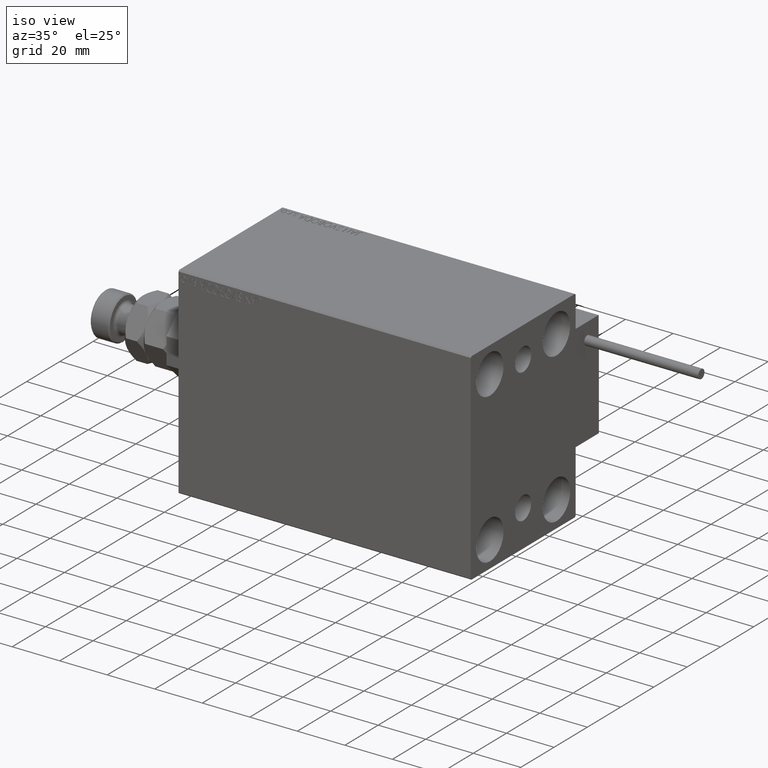
[diagram: clean part render]
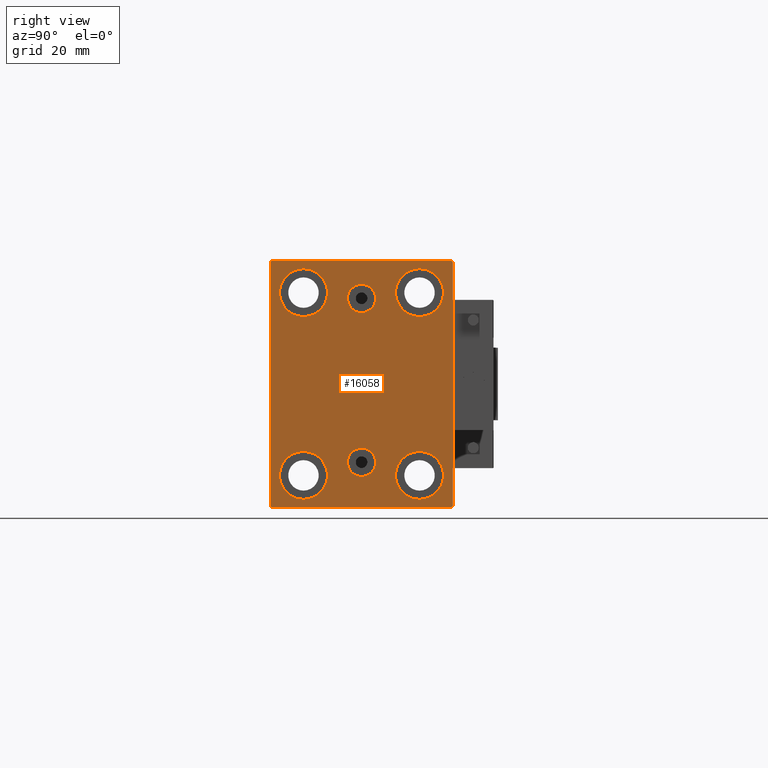
[diagram: tour spotlight — one face highlighted and labeled with its STEP entity id]
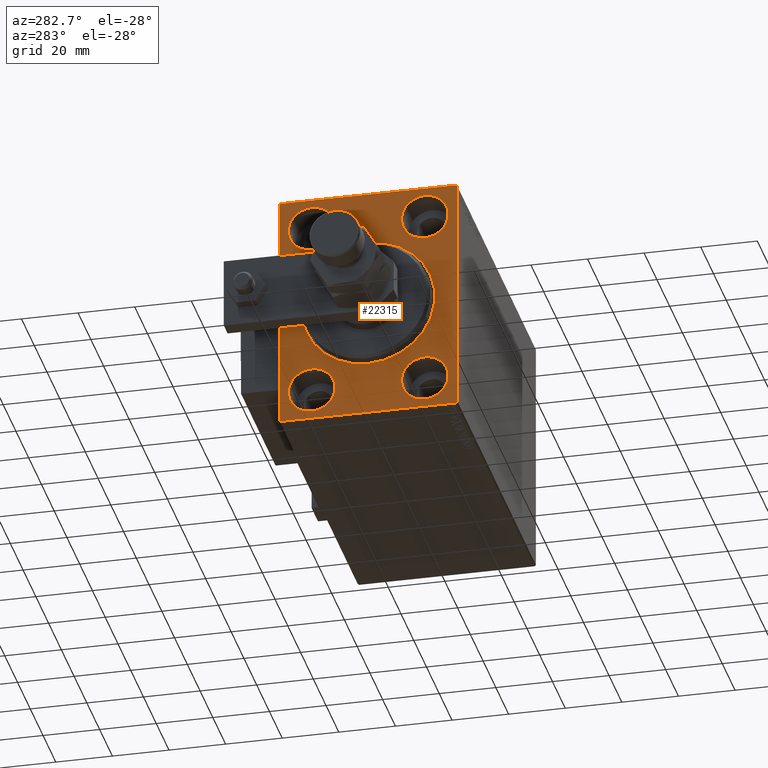
[diagram: tour spotlight — one face highlighted and labeled with its STEP entity id]
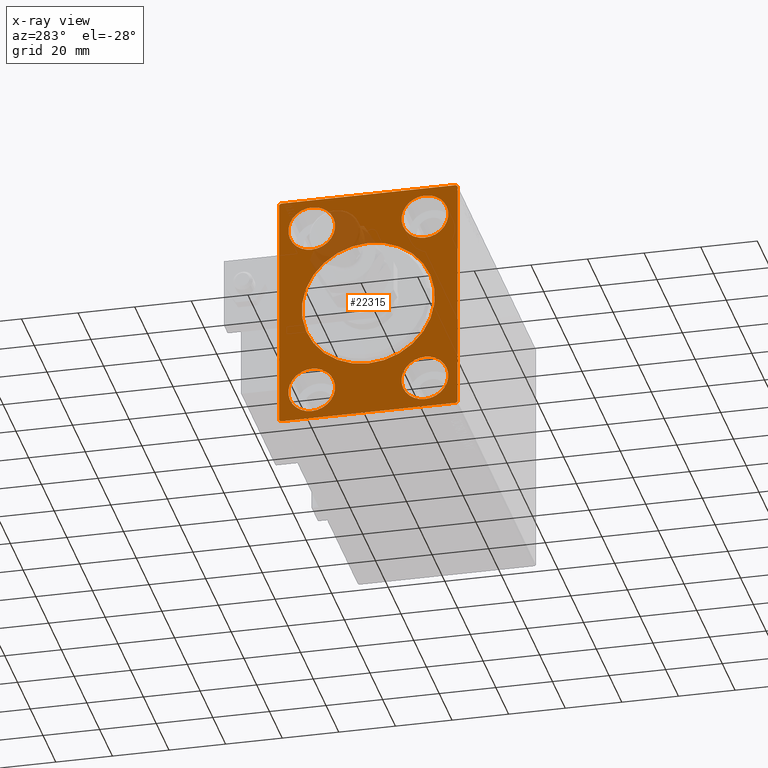
[diagram: x-ray of the same camera — body ghosted, this tour face saturated]
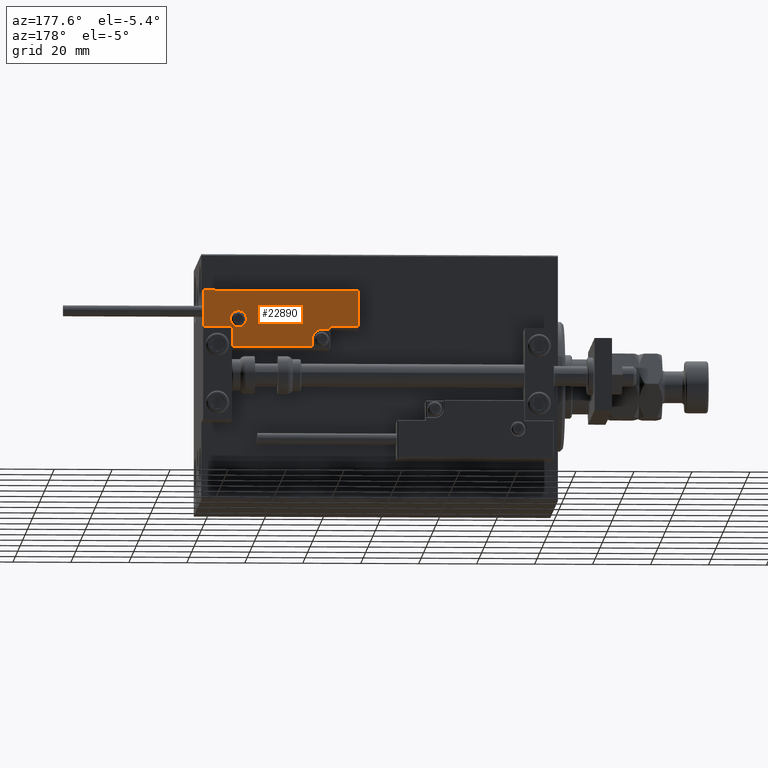
[diagram: tour spotlight — one face highlighted and labeled with its STEP entity id]
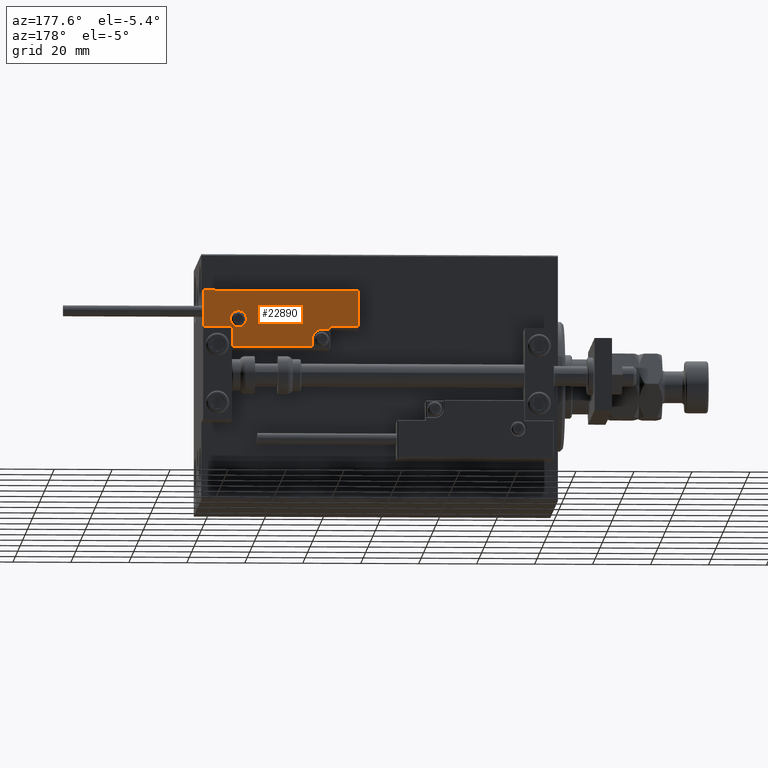
[diagram: tour spotlight — one face highlighted and labeled with its STEP entity id]
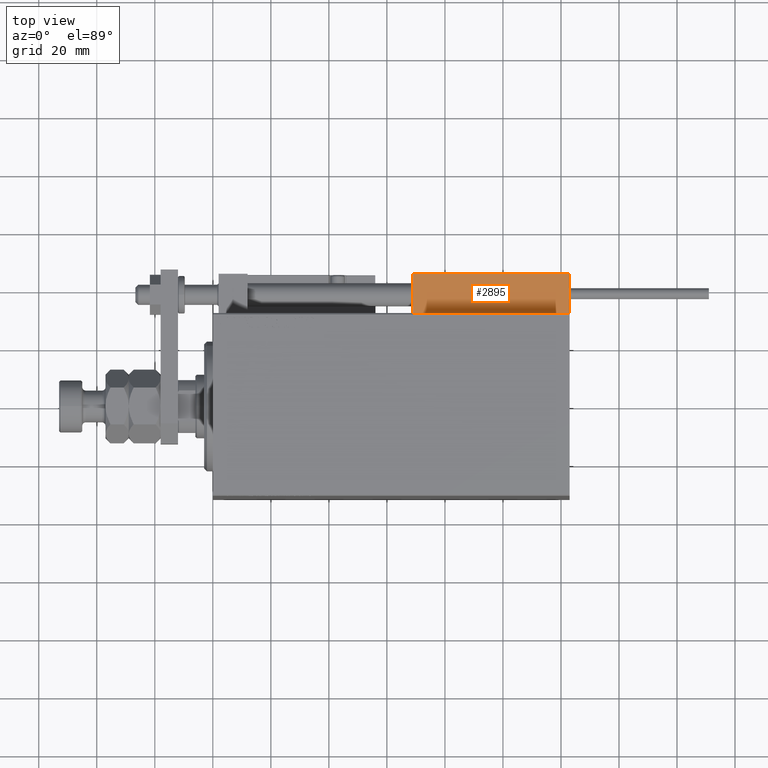
[diagram: tour spotlight — one face highlighted and labeled with its STEP entity id]
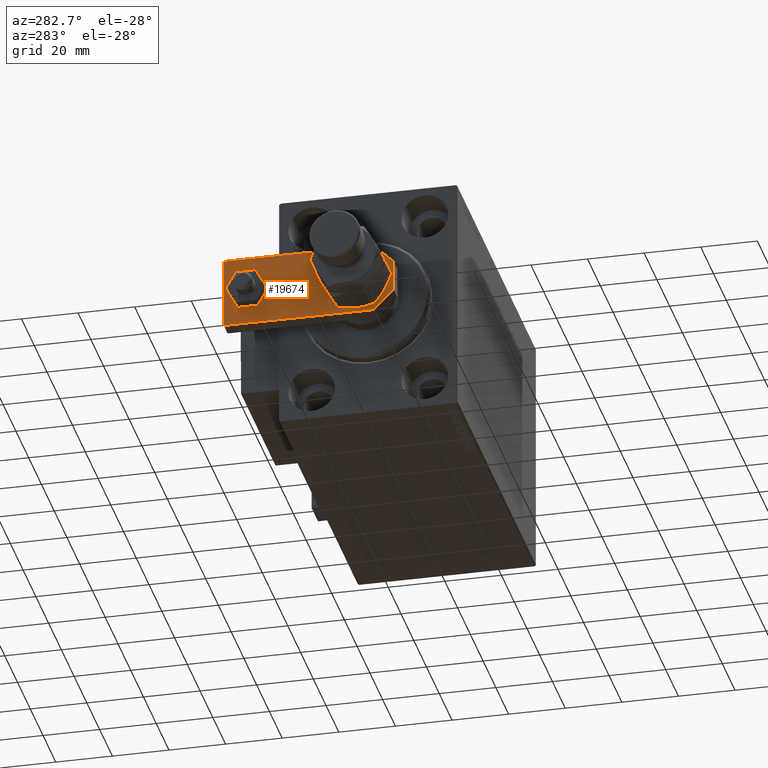
[diagram: tour spotlight — one face highlighted and labeled with its STEP entity id]
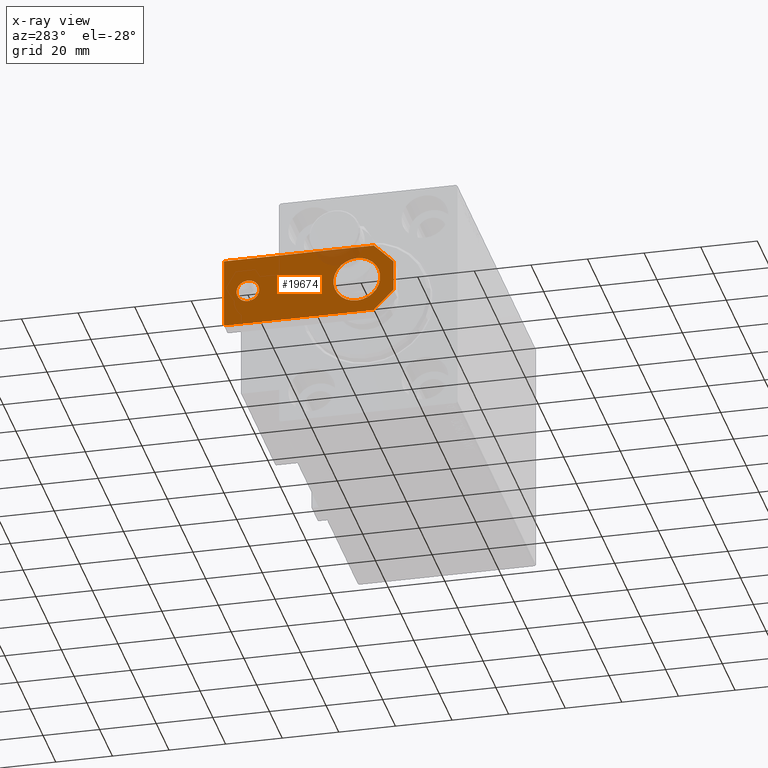
[diagram: x-ray of the same camera — body ghosted, this tour face saturated]
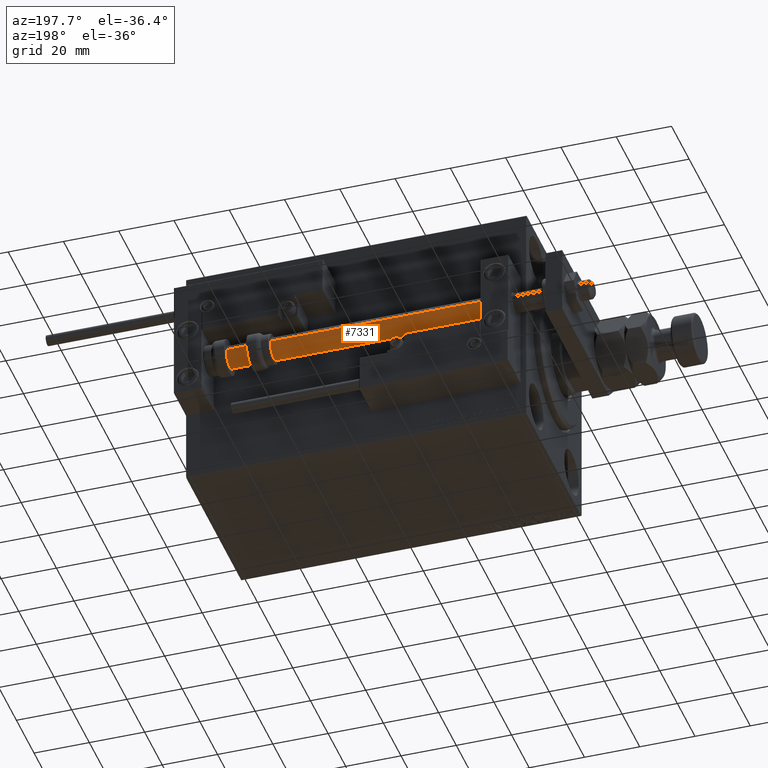
[diagram: tour spotlight — one face highlighted and labeled with its STEP entity id]
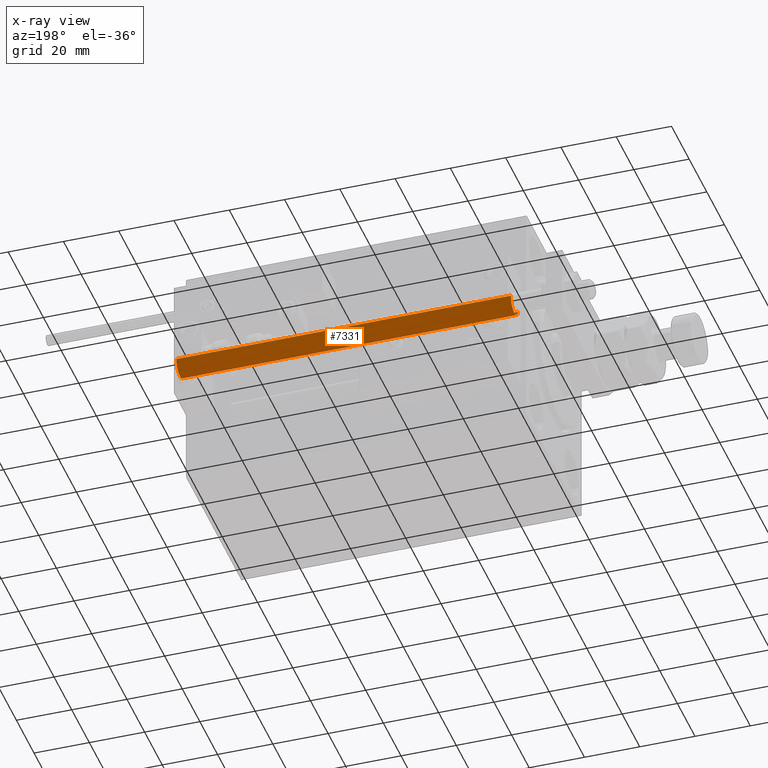
[diagram: x-ray of the same camera — body ghosted, this tour face saturated]
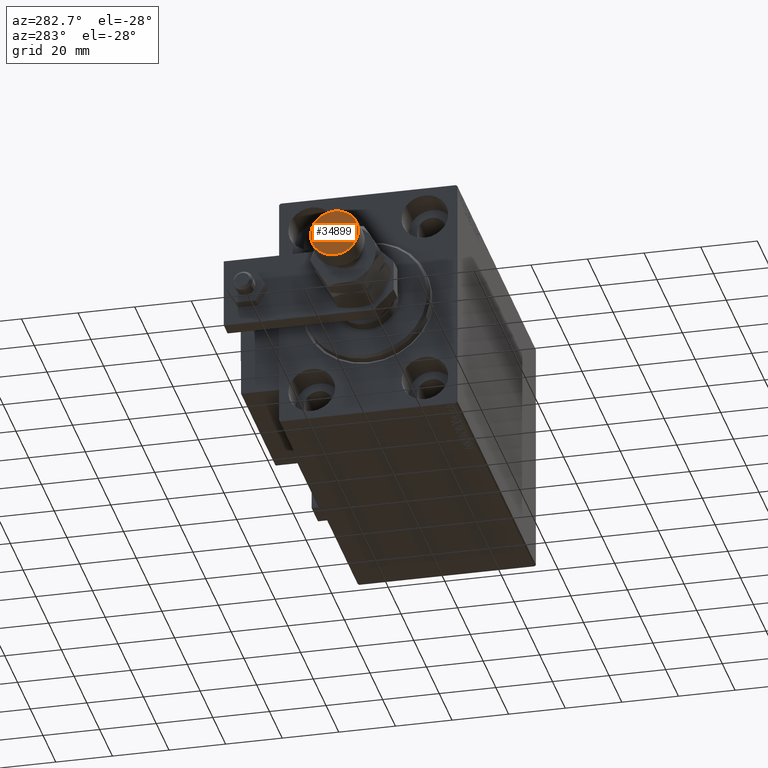
[diagram: tour spotlight — one face highlighted and labeled with its STEP entity id]
A machine part: a face-by-face anatomy tour. The part has 1330 B-rep faces; the first image is the clean iso view, then the 8 largest visible faces are spotlighted one at a time (largest first), each with its STEP entity span.

Face 1 — right view, entity #16058. In plain terms, the highlighted planar face has unit normal (1, 0, 0).
Definition (entity closure, byte-faithful):
#247 = CARTESIAN_POINT ( 'NONE',  ( 123.0000000000000000, -20.00000000000000355, -31.49999999999999289 ) ) ;
#297 = VERTEX_POINT ( 'NONE', #22168 ) ;
#622 = EDGE_CURVE ( 'NONE', #297, #10848, #46966, .T. ) ;
#715 = FACE_BOUND ( 'NONE', #41919, .T. ) ;
#771 = DIRECTION ( 'NONE',  ( 0.000000000000000000, 0.000000000000000000, 1.000000000000000000 ) ) ;
#809 = CARTESIAN_POINT ( 'NONE',  ( 123.0000000000000000, -31.50000000000000000, -42.00000000000003553 ) ) ;
#1351 = DIRECTION ( 'NONE',  ( 0.000000000000000000, 1.000000000000000000, 0.000000000000000000 ) ) ;
#1472 = FACE_BOUND ( 'NONE', #13859, .T. ) ;
#1634 = DIRECTION ( 'NONE',  ( 0.000000000000000000, 0.000000000000000000, 1.000000000000000000 ) ) ;
#1706 = ORIENTED_EDGE ( 'NONE', *, *, #44236, .T. ) ;
#1954 = CARTESIAN_POINT ( 'NONE',  ( 123.0000000000000000, -3.571693674697836683E-15, 24.64000000000001123 ) ) ;
#2218 = VERTEX_POINT ( 'NONE', #14659 ) ;
#2407 = ORIENTED_EDGE ( 'NONE', *, *, #24844, .T. ) ;
#2639 = ORIENTED_EDGE ( 'NONE', *, *, #44418, .T. ) ;
#3216 = CARTESIAN_POINT ( 'NONE',  ( 123.0000000000000000, 20.00000000000000355, 31.50000000000000000 ) ) ;
#3241 = CARTESIAN_POINT ( 'NONE',  ( 123.0000000000000000, 36.74999999999958078, 36.75000000000059686 ) ) ;
#3707 = CARTESIAN_POINT ( 'NONE',  ( 123.0000000000000000, 20.00000000000000355, 39.74999999999999289 ) ) ;
#3862 = DIRECTION ( 'NONE',  ( -0.000000000000000000, 0.7071067811865376918, 0.7071067811865573427 ) ) ;
#4093 = VERTEX_POINT ( 'NONE', #35158 ) ;
#4164 = DIRECTION ( 'NONE',  ( -1.000000000000000000, -0.000000000000000000, -0.000000000000000000 ) ) ;
#4343 = CARTESIAN_POINT ( 'NONE',  ( 123.0000000000000000, -19.99999999999999645, 31.50000000000000000 ) ) ;
#4370 = FACE_BOUND ( 'NONE', #22813, .T. ) ;
#4871 = DIRECTION ( 'NONE',  ( 1.000000000000000000, 0.000000000000000000, 0.000000000000000000 ) ) ;
#5236 = CARTESIAN_POINT ( 'NONE',  ( 123.0000000000000000, -19.99999999999999645, 23.25000000000000355 ) ) ;
#6329 = VERTEX_POINT ( 'NONE', #6703 ) ;
#6663 = CARTESIAN_POINT ( 'NONE',  ( 123.0000000000000000, -31.50000000000000000, 42.49999999999999289 ) ) ;
#6703 = CARTESIAN_POINT ( 'NONE',  ( 123.0000000000000000, 3.901724702083465828E-15, -22.13999999999999346 ) ) ;
#6775 = DIRECTION ( 'NONE',  ( -1.000000000000000000, -0.000000000000000000, -0.000000000000000000 ) ) ;
#6808 = DIRECTION ( 'NONE',  ( 0.000000000000000000, -1.000000000000000000, -2.202823461557850341E-16 ) ) ;
#6892 = CARTESIAN_POINT ( 'NONE',  ( 123.0000000000000000, 3.306546357697852550E-15, -26.99999999999998934 ) ) ;
#6997 = AXIS2_PLACEMENT_3D ( 'NONE', #50469, #6775, #34262 ) ;
#7304 = CARTESIAN_POINT ( 'NONE',  ( 123.0000000000000000, -20.00000000000000355, -31.49999999999999289 ) ) ;
#8119 = EDGE_CURVE ( 'NONE', #8519, #43552, #23447, .T. ) ;
#8454 = DIRECTION ( 'NONE',  ( 0.000000000000000000, -0.7071067811865474617, -0.7071067811865474617 ) ) ;
#8519 = VERTEX_POINT ( 'NONE', #24586 ) ;
#8571 = DIRECTION ( 'NONE',  ( 0.000000000000000000, 0.000000000000000000, 1.000000000000000000 ) ) ;
#9755 = DIRECTION ( 'NONE',  ( -1.000000000000000000, -0.000000000000000000, -0.000000000000000000 ) ) ;
#9924 = CIRCLE ( 'NONE', #16620, 8.249999999999992895 ) ;
#10413 = AXIS2_PLACEMENT_3D ( 'NONE', #6892, #10815, #15008 ) ;
#10696 = VERTEX_POINT ( 'NONE', #44509 ) ;
#10815 = DIRECTION ( 'NONE',  ( 1.000000000000000000, 0.000000000000000000, -0.000000000000000000 ) ) ;
#10841 = LINE ( 'NONE', #3241, #30824 ) ;
#10848 = VERTEX_POINT ( 'NONE', #809 ) ;
#10855 = CARTESIAN_POINT ( 'NONE',  ( 123.0000000000000000, -3.571693674697836683E-15, 29.50000000000001066 ) ) ;
#11253 = EDGE_LOOP ( 'NONE', ( #41554, #50107 ) ) ;
#11321 = VECTOR ( 'NONE', #6808, 1000.000000000000000 ) ;
#11486 = CARTESIAN_POINT ( 'NONE',  ( 123.0000000000000000, 19.99999999999999645, -31.49999999999999289 ) ) ;
#11498 = VERTEX_POINT ( 'NONE', #1954 ) ;
#11521 = EDGE_CURVE ( 'NONE', #11498, #35811, #48462, .T. ) ;
#11845 = VERTEX_POINT ( 'NONE', #43951 ) ;
#11922 = EDGE_CURVE ( 'NONE', #10848, #8519, #49154, .T. ) ;
#12105 = AXIS2_PLACEMENT_3D ( 'NONE', #7304, #26648, #30844 ) ;
#12635 = LINE ( 'NONE', #29093, #48231 ) ;
#12756 = ORIENTED_EDGE ( 'NONE', *, *, #51509, .T. ) ;
#13309 = CARTESIAN_POINT ( 'NONE',  ( 123.0000000000000000, -36.74999999999958078, -36.75000000000060396 ) ) ;
#13356 = VECTOR ( 'NONE', #13565, 1000.000000000000114 ) ;
#13528 = CARTESIAN_POINT ( 'NONE',  ( 123.0000000000000000, 20.00000000000000355, 31.50000000000000000 ) ) ;
#13565 = DIRECTION ( 'NONE',  ( -0.000000000000000000, 0.7071067811865573427, -0.7071067811865376918 ) ) ;
#13856 = AXIS2_PLACEMENT_3D ( 'NONE', #247, #4164, #771 ) ;
#13859 = EDGE_LOOP ( 'NONE', ( #17944, #45144 ) ) ;
#14150 = EDGE_LOOP ( 'NONE', ( #1706, #28263 ) ) ;
#14508 = DIRECTION ( 'NONE',  ( -0.000000000000000000, -0.7071067811865573427, 0.7071067811865378028 ) ) ;
#14659 = CARTESIAN_POINT ( 'NONE',  ( 123.0000000000000000, 19.99999999999999645, -23.24999999999999289 ) ) ;
#14881 = ORIENTED_EDGE ( 'NONE', *, *, #26823, .T. ) ;
#15008 = DIRECTION ( 'NONE',  ( 0.000000000000000000, 0.000000000000000000, 1.000000000000000000 ) ) ;
#15040 = DIRECTION ( 'NONE',  ( 0.000000000000000000, 0.000000000000000000, -1.000000000000000000 ) ) ;
#15085 = CARTESIAN_POINT ( 'NONE',  ( 123.0000000000000000, 3.306546357697852550E-15, -31.85999999999998522 ) ) ;
#16058 = ADVANCED_FACE ( 'NONE', ( #32881, #1472, #17194, #715, #4370, #49108, #21116 ), #16427, .T. ) ;
#16427 = PLANE ( 'NONE',  #23554 ) ;
#16432 = CARTESIAN_POINT ( 'NONE',  ( 123.0000000000000000, 36.75000000000045475, -36.74999999999943867 ) ) ;
#16620 = AXIS2_PLACEMENT_3D ( 'NONE', #13528, #17202, #8571 ) ;
#16909 = DIRECTION ( 'NONE',  ( 0.000000000000000000, 0.000000000000000000, 1.000000000000000000 ) ) ;
#17194 = FACE_BOUND ( 'NONE', #14150, .T. ) ;
#17202 = DIRECTION ( 'NONE',  ( -1.000000000000000000, -0.000000000000000000, -0.000000000000000000 ) ) ;
#17765 = DIRECTION ( 'NONE',  ( 0.000000000000000000, 0.000000000000000000, 1.000000000000000000 ) ) ;
#17935 = ORIENTED_EDGE ( 'NONE', *, *, #28405, .T. ) ;
#17944 = ORIENTED_EDGE ( 'NONE', *, *, #23334, .F. ) ;
#18697 = ORIENTED_EDGE ( 'NONE', *, *, #41221, .T. ) ;
#18711 = DIRECTION ( 'NONE',  ( 1.000000000000000000, 0.000000000000000000, 0.000000000000000000 ) ) ;
#18847 = CARTESIAN_POINT ( 'NONE',  ( 123.0000000000000000, 31.50000000000000000, 42.50000000000000711 ) ) ;
#18864 = CIRCLE ( 'NONE', #48107, 4.859999999999995879 ) ;
#18995 = AXIS2_PLACEMENT_3D ( 'NONE', #11486, #48353, #27940 ) ;
#19663 = EDGE_CURVE ( 'NONE', #2218, #4093, #29542, .T. ) ;
#20350 = DIRECTION ( 'NONE',  ( 1.000000000000000000, 0.000000000000000000, 0.000000000000000000 ) ) ;
#20605 = CARTESIAN_POINT ( 'NONE',  ( 123.0000000000000000, 0.000000000000000000, 0.000000000000000000 ) ) ;
#20952 = ORIENTED_EDGE ( 'NONE', *, *, #25728, .T. ) ;
#21021 = DIRECTION ( 'NONE',  ( -1.000000000000000000, -0.000000000000000000, -0.000000000000000000 ) ) ;
#21116 = FACE_OUTER_BOUND ( 'NONE', #24616, .T. ) ;
#21168 = DIRECTION ( 'NONE',  ( 1.000000000000000000, 0.000000000000000000, -0.000000000000000000 ) ) ;
#21363 = CIRCLE ( 'NONE', #13856, 8.250000000000000000 ) ;
#21372 = DIRECTION ( 'NONE',  ( 0.000000000000000000, 0.000000000000000000, -1.000000000000000000 ) ) ;
#21938 = CARTESIAN_POINT ( 'NONE',  ( 123.0000000000000000, 3.306546357697852550E-15, -26.99999999999998934 ) ) ;
#22168 = CARTESIAN_POINT ( 'NONE',  ( 123.0000000000000000, -31.50000000000000000, 41.99999999999999289 ) ) ;
#22413 = AXIS2_PLACEMENT_3D ( 'NONE', #28679, #4871, #36800 ) ;
#22813 = EDGE_LOOP ( 'NONE', ( #18697, #48313 ) ) ;
#23305 = VECTOR ( 'NONE', #1351, 1000.000000000000000 ) ;
#23334 = EDGE_CURVE ( 'NONE', #51692, #6329, #44671, .T. ) ;
#23383 = DIRECTION ( 'NONE',  ( -1.000000000000000000, -0.000000000000000000, -0.000000000000000000 ) ) ;
#23447 = LINE ( 'NONE', #40616, #23305 ) ;
#23472 = CARTESIAN_POINT ( 'NONE',  ( 123.0000000000000000, 20.00000000000000355, 23.25000000000000355 ) ) ;
#23537 = VERTEX_POINT ( 'NONE', #48722 ) ;
#23554 = AXIS2_PLACEMENT_3D ( 'NONE', #20605, #20350, #21372 ) ;
#23877 = AXIS2_PLACEMENT_3D ( 'NONE', #3216, #23383, #26244 ) ;
#24586 = CARTESIAN_POINT ( 'NONE',  ( 123.0000000000000000, -31.00000000000001421, -42.50000000000000711 ) ) ;
#24616 = EDGE_LOOP ( 'NONE', ( #20952, #2639, #29235, #27640, #30404, #12756, #28164, #42228 ) ) ;
#24844 = EDGE_CURVE ( 'NONE', #10696, #26437, #34665, .T. ) ;
#24946 = LINE ( 'NONE', #40923, #29720 ) ;
#25310 = EDGE_CURVE ( 'NONE', #40718, #49028, #50568, .T. ) ;
#25728 = EDGE_CURVE ( 'NONE', #11845, #27177, #42659, .T. ) ;
#25736 = CARTESIAN_POINT ( 'NONE',  ( 123.0000000000000000, 31.00000000000004263, -42.50000000000000711 ) ) ;
#26244 = DIRECTION ( 'NONE',  ( 0.000000000000000000, 0.000000000000000000, 1.000000000000000000 ) ) ;
#26437 = VERTEX_POINT ( 'NONE', #27846 ) ;
#26578 = VECTOR ( 'NONE', #3862, 1000.000000000000114 ) ;
#26601 = EDGE_CURVE ( 'NONE', #23537, #45578, #24946, .T. ) ;
#26648 = DIRECTION ( 'NONE',  ( -1.000000000000000000, -0.000000000000000000, -0.000000000000000000 ) ) ;
#26823 = EDGE_CURVE ( 'NONE', #26437, #10696, #21363, .T. ) ;
#26922 = EDGE_CURVE ( 'NONE', #6329, #51692, #18864, .T. ) ;
#27177 = VERTEX_POINT ( 'NONE', #27917 ) ;
#27640 = ORIENTED_EDGE ( 'NONE', *, *, #11922, .T. ) ;
#27846 = CARTESIAN_POINT ( 'NONE',  ( 123.0000000000000000, -20.00000000000000355, -23.24999999999999289 ) ) ;
#27917 = CARTESIAN_POINT ( 'NONE',  ( 123.0000000000000000, -31.00000000000000000, 42.49999999999999289 ) ) ;
#27940 = DIRECTION ( 'NONE',  ( 0.000000000000000000, 0.000000000000000000, 1.000000000000000000 ) ) ;
#27994 = AXIS2_PLACEMENT_3D ( 'NONE', #4343, #9755, #16909 ) ;
#28164 = ORIENTED_EDGE ( 'NONE', *, *, #26601, .T. ) ;
#28263 = ORIENTED_EDGE ( 'NONE', *, *, #19663, .T. ) ;
#28405 = EDGE_CURVE ( 'NONE', #49028, #40718, #49740, .T. ) ;
#28679 = CARTESIAN_POINT ( 'NONE',  ( 123.0000000000000000, -3.571693674697836683E-15, 29.50000000000001066 ) ) ;
#28770 = VERTEX_POINT ( 'NONE', #23472 ) ;
#29093 = CARTESIAN_POINT ( 'NONE',  ( 123.0000000000000000, -36.75000000000000000, 36.75000000000000000 ) ) ;
#29235 = ORIENTED_EDGE ( 'NONE', *, *, #622, .T. ) ;
#29542 = CIRCLE ( 'NONE', #6997, 8.250000000000000000 ) ;
#29720 = VECTOR ( 'NONE', #32296, 1000.000000000000000 ) ;
#30404 = ORIENTED_EDGE ( 'NONE', *, *, #8119, .T. ) ;
#30450 = VERTEX_POINT ( 'NONE', #3707 ) ;
#30824 = VECTOR ( 'NONE', #14508, 1000.000000000000000 ) ;
#30844 = DIRECTION ( 'NONE',  ( 0.000000000000000000, 0.000000000000000000, 1.000000000000000000 ) ) ;
#32296 = DIRECTION ( 'NONE',  ( 0.000000000000000000, -1.632680918566406300E-16, 1.000000000000000000 ) ) ;
#32585 = AXIS2_PLACEMENT_3D ( 'NONE', #10855, #18711, #51146 ) ;
#32881 = FACE_BOUND ( 'NONE', #11253, .T. ) ;
#34262 = DIRECTION ( 'NONE',  ( 0.000000000000000000, 0.000000000000000000, 1.000000000000000000 ) ) ;
#34665 = CIRCLE ( 'NONE', #12105, 8.250000000000000000 ) ;
#35158 = CARTESIAN_POINT ( 'NONE',  ( 123.0000000000000000, 19.99999999999999645, -39.74999999999999289 ) ) ;
#35353 = ORIENTED_EDGE ( 'NONE', *, *, #25310, .T. ) ;
#35811 = VERTEX_POINT ( 'NONE', #45053 ) ;
#36488 = EDGE_CURVE ( 'NONE', #30450, #28770, #9924, .T. ) ;
#36800 = DIRECTION ( 'NONE',  ( 0.000000000000000000, 0.000000000000000000, -1.000000000000000000 ) ) ;
#39057 = CIRCLE ( 'NONE', #18995, 8.250000000000000000 ) ;
#40616 = CARTESIAN_POINT ( 'NONE',  ( 123.0000000000000000, -31.50000000000000000, -42.50000000000000711 ) ) ;
#40718 = VERTEX_POINT ( 'NONE', #51552 ) ;
#40923 = CARTESIAN_POINT ( 'NONE',  ( 123.0000000000000000, 31.50000000000001421, -42.50000000000000711 ) ) ;
#41221 = EDGE_CURVE ( 'NONE', #28770, #30450, #43954, .T. ) ;
#41554 = ORIENTED_EDGE ( 'NONE', *, *, #11521, .F. ) ;
#41746 = EDGE_LOOP ( 'NONE', ( #2407, #14881 ) ) ;
#41919 = EDGE_LOOP ( 'NONE', ( #17935, #35353 ) ) ;
#42199 = AXIS2_PLACEMENT_3D ( 'NONE', #45083, #21021, #1634 ) ;
#42228 = ORIENTED_EDGE ( 'NONE', *, *, #48695, .T. ) ;
#42659 = LINE ( 'NONE', #18847, #11321 ) ;
#43552 = VERTEX_POINT ( 'NONE', #25736 ) ;
#43951 = CARTESIAN_POINT ( 'NONE',  ( 123.0000000000000000, 31.00000000000000000, 42.50000000000000711 ) ) ;
#43954 = CIRCLE ( 'NONE', #23877, 8.249999999999992895 ) ;
#44173 = LINE ( 'NONE', #16432, #26578 ) ;
#44236 = EDGE_CURVE ( 'NONE', #4093, #2218, #39057, .T. ) ;
#44418 = EDGE_CURVE ( 'NONE', #27177, #297, #12635, .T. ) ;
#44456 = CARTESIAN_POINT ( 'NONE',  ( 123.0000000000000000, 31.50000000000000000, 42.00000000000002132 ) ) ;
#44509 = CARTESIAN_POINT ( 'NONE',  ( 123.0000000000000000, -20.00000000000000355, -39.74999999999999289 ) ) ;
#44671 = CIRCLE ( 'NONE', #10413, 4.859999999999995879 ) ;
#45053 = CARTESIAN_POINT ( 'NONE',  ( 123.0000000000000000, -2.976515330312223011E-15, 34.36000000000000654 ) ) ;
#45083 = CARTESIAN_POINT ( 'NONE',  ( 123.0000000000000000, -19.99999999999999645, 31.50000000000000000 ) ) ;
#45144 = ORIENTED_EDGE ( 'NONE', *, *, #26922, .F. ) ;
#45578 = VERTEX_POINT ( 'NONE', #44456 ) ;
#46320 = VECTOR ( 'NONE', #15040, 1000.000000000000000 ) ;
#46966 = LINE ( 'NONE', #6663, #46320 ) ;
#47574 = CIRCLE ( 'NONE', #22413, 4.859999999999999432 ) ;
#48107 = AXIS2_PLACEMENT_3D ( 'NONE', #21938, #21168, #17765 ) ;
#48231 = VECTOR ( 'NONE', #8454, 1000.000000000000114 ) ;
#48313 = ORIENTED_EDGE ( 'NONE', *, *, #36488, .T. ) ;
#48353 = DIRECTION ( 'NONE',  ( -1.000000000000000000, -0.000000000000000000, -0.000000000000000000 ) ) ;
#48462 = CIRCLE ( 'NONE', #32585, 4.859999999999999432 ) ;
#48695 = EDGE_CURVE ( 'NONE', #45578, #11845, #10841, .T. ) ;
#48722 = CARTESIAN_POINT ( 'NONE',  ( 123.0000000000000000, 31.50000000000001421, -42.00000000000002132 ) ) ;
#49028 = VERTEX_POINT ( 'NONE', #5236 ) ;
#49108 = FACE_BOUND ( 'NONE', #41746, .T. ) ;
#49154 = LINE ( 'NONE', #13309, #13356 ) ;
#49740 = CIRCLE ( 'NONE', #42199, 8.249999999999992895 ) ;
#50107 = ORIENTED_EDGE ( 'NONE', *, *, #50650, .F. ) ;
#50469 = CARTESIAN_POINT ( 'NONE',  ( 123.0000000000000000, 19.99999999999999645, -31.49999999999999289 ) ) ;
#50568 = CIRCLE ( 'NONE', #27994, 8.249999999999992895 ) ;
#50650 = EDGE_CURVE ( 'NONE', #35811, #11498, #47574, .T. ) ;
#51146 = DIRECTION ( 'NONE',  ( 0.000000000000000000, 0.000000000000000000, -1.000000000000000000 ) ) ;
#51509 = EDGE_CURVE ( 'NONE', #43552, #23537, #44173, .T. ) ;
#51552 = CARTESIAN_POINT ( 'NONE',  ( 123.0000000000000000, -19.99999999999999645, 39.74999999999999289 ) ) ;
#51692 = VERTEX_POINT ( 'NONE', #15085 ) ;

Face 2 — auxiliary view, entity #22315. An x-ray twin of the same camera follows (body ghosted, this face saturated) — the face is partly hidden behind the body. In plain terms, the highlighted planar face has unit normal (1, 0, 0).
Definition (entity closure, byte-faithful):
#183 = CARTESIAN_POINT ( 'NONE',  ( 0.000000000000000000, -31.50000000000000000, 41.99999999999999289 ) ) ;
#471 = DIRECTION ( 'NONE',  ( 0.000000000000000000, -1.000000000000000000, -2.202823461557850341E-16 ) ) ;
#727 = LINE ( 'NONE', #24788, #4040 ) ;
#990 = VERTEX_POINT ( 'NONE', #3180 ) ;
#1323 = LINE ( 'NONE', #34543, #17185 ) ;
#1329 = EDGE_CURVE ( 'NONE', #39419, #35509, #21293, .T. ) ;
#1388 = EDGE_LOOP ( 'NONE', ( #24782, #22925 ) ) ;
#1455 = CIRCLE ( 'NONE', #11490, 8.249999999999992895 ) ;
#1547 = CIRCLE ( 'NONE', #24079, 8.250000000000000000 ) ;
#2596 = DIRECTION ( 'NONE',  ( 0.000000000000000000, 0.000000000000000000, 1.000000000000000000 ) ) ;
#2604 = DIRECTION ( 'NONE',  ( 0.000000000000000000, 0.000000000000000000, 1.000000000000000000 ) ) ;
#2973 = CARTESIAN_POINT ( 'NONE',  ( 0.000000000000000000, -31.50000000000000000, 41.99999999999999289 ) ) ;
#3180 = CARTESIAN_POINT ( 'NONE',  ( 0.000000000000000000, 31.50000000000000000, 42.00000000000002132 ) ) ;
#3436 = DIRECTION ( 'NONE',  ( 0.000000000000000000, 0.000000000000000000, 1.000000000000000000 ) ) ;
#3595 = CARTESIAN_POINT ( 'NONE',  ( 0.000000000000000000, -31.00000000000001421, -42.50000000000000711 ) ) ;
#3645 = DIRECTION ( 'NONE',  ( -1.000000000000000000, 0.000000000000000000, 0.000000000000000000 ) ) ;
#3662 = VERTEX_POINT ( 'NONE', #3595 ) ;
#4040 = VECTOR ( 'NONE', #471, 1000.000000000000000 ) ;
#4476 = LINE ( 'NONE', #20206, #32228 ) ;
#5566 = EDGE_CURVE ( 'NONE', #21476, #50460, #28937, .T. ) ;
#5592 = CIRCLE ( 'NONE', #28160, 8.249999999999992895 ) ;
#5834 = FACE_BOUND ( 'NONE', #43046, .T. ) ;
#6651 = VERTEX_POINT ( 'NONE', #42493 ) ;
#6738 = ORIENTED_EDGE ( 'NONE', *, *, #26199, .T. ) ;
#6839 = EDGE_CURVE ( 'NONE', #45897, #31960, #5592, .T. ) ;
#7157 = CARTESIAN_POINT ( 'NONE',  ( 0.000000000000000000, -20.00000000000000355, -31.49999999999999289 ) ) ;
#7332 = DIRECTION ( 'NONE',  ( 0.000000000000000000, -0.7071067811865376918, -0.7071067811865573427 ) ) ;
#7532 = DIRECTION ( 'NONE',  ( -0.000000000000000000, 0.7071067811865474617, 0.7071067811865474617 ) ) ;
#7826 = AXIS2_PLACEMENT_3D ( 'NONE', #9492, #13432, #25705 ) ;
#8182 = DIRECTION ( 'NONE',  ( 0.000000000000000000, 0.000000000000000000, 1.000000000000000000 ) ) ;
#8427 = EDGE_CURVE ( 'NONE', #3662, #24637, #19654, .T. ) ;
#8828 = EDGE_CURVE ( 'NONE', #17849, #21267, #727, .T. ) ;
#9279 = ORIENTED_EDGE ( 'NONE', *, *, #29563, .F. ) ;
#9492 = CARTESIAN_POINT ( 'NONE',  ( 0.000000000000000000, 0.000000000000000000, 0.000000000000000000 ) ) ;
#9760 = PLANE ( 'NONE',  #7826 ) ;
#10045 = DIRECTION ( 'NONE',  ( -1.000000000000000000, 0.000000000000000000, 0.000000000000000000 ) ) ;
#10498 = EDGE_CURVE ( 'NONE', #6651, #33139, #33370, .T. ) ;
#10516 = ORIENTED_EDGE ( 'NONE', *, *, #25659, .T. ) ;
#10639 = CARTESIAN_POINT ( 'NONE',  ( 0.000000000000000000, 31.00000000000000000, 42.50000000000000711 ) ) ;
#10779 = CARTESIAN_POINT ( 'NONE',  ( 0.000000000000000000, 20.00000000000000355, 23.25000000000000355 ) ) ;
#10835 = CARTESIAN_POINT ( 'NONE',  ( 0.000000000000000000, -19.99999999999999645, 23.25000000000000355 ) ) ;
#11014 = DIRECTION ( 'NONE',  ( -0.000000000000000000, -0.7071067811865573427, 0.7071067811865376918 ) ) ;
#11363 = CIRCLE ( 'NONE', #23045, 23.50000000000000355 ) ;
#11490 = AXIS2_PLACEMENT_3D ( 'NONE', #34286, #42389, #2596 ) ;
#11675 = ORIENTED_EDGE ( 'NONE', *, *, #8828, .F. ) ;
#12052 = LINE ( 'NONE', #28254, #40797 ) ;
#12110 = DIRECTION ( 'NONE',  ( -1.000000000000000000, 0.000000000000000000, 0.000000000000000000 ) ) ;
#12444 = CARTESIAN_POINT ( 'NONE',  ( 0.000000000000000000, 2.877919977996280715E-15, -23.50000000000000355 ) ) ;
#13145 = DIRECTION ( 'NONE',  ( -1.000000000000000000, 0.000000000000000000, 0.000000000000000000 ) ) ;
#13432 = DIRECTION ( 'NONE',  ( 1.000000000000000000, 0.000000000000000000, 0.000000000000000000 ) ) ;
#13703 = DIRECTION ( 'NONE',  ( 0.000000000000000000, 0.000000000000000000, 1.000000000000000000 ) ) ;
#13780 = ORIENTED_EDGE ( 'NONE', *, *, #6839, .F. ) ;
#13952 = FACE_OUTER_BOUND ( 'NONE', #28074, .T. ) ;
#14194 = DIRECTION ( 'NONE',  ( -1.000000000000000000, 0.000000000000000000, 0.000000000000000000 ) ) ;
#15406 = CARTESIAN_POINT ( 'NONE',  ( 0.000000000000000000, 19.99999999999999645, -23.24999999999999289 ) ) ;
#15971 = CARTESIAN_POINT ( 'NONE',  ( 0.000000000000000000, -20.00000000000000355, -31.49999999999999289 ) ) ;
#17185 = VECTOR ( 'NONE', #7332, 1000.000000000000114 ) ;
#17329 = CARTESIAN_POINT ( 'NONE',  ( 0.000000000000000000, -19.99999999999999645, 31.50000000000000000 ) ) ;
#17376 = CIRCLE ( 'NONE', #46625, 8.249999999999992895 ) ;
#17456 = LINE ( 'NONE', #33665, #28130 ) ;
#17849 = VERTEX_POINT ( 'NONE', #10639 ) ;
#18303 = VERTEX_POINT ( 'NONE', #2973 ) ;
#18768 = LINE ( 'NONE', #19557, #38367 ) ;
#18801 = AXIS2_PLACEMENT_3D ( 'NONE', #48818, #33898, #37818 ) ;
#19204 = DIRECTION ( 'NONE',  ( 0.000000000000000000, 0.000000000000000000, 1.000000000000000000 ) ) ;
#19429 = CARTESIAN_POINT ( 'NONE',  ( 0.000000000000000000, 31.50000000000001421, -42.00000000000002132 ) ) ;
#19557 = CARTESIAN_POINT ( 'NONE',  ( 0.000000000000000000, 31.00000000000000000, 42.50000000000000711 ) ) ;
#19654 = LINE ( 'NONE', #39793, #46794 ) ;
#19885 = ORIENTED_EDGE ( 'NONE', *, *, #1329, .T. ) ;
#20206 = CARTESIAN_POINT ( 'NONE',  ( 0.000000000000000000, 31.50000000000001421, -42.50000000000000711 ) ) ;
#21267 = VERTEX_POINT ( 'NONE', #39882 ) ;
#21293 = CIRCLE ( 'NONE', #18801, 23.50000000000000355 ) ;
#21476 = VERTEX_POINT ( 'NONE', #34800 ) ;
#22146 = DIRECTION ( 'NONE',  ( 0.000000000000000000, 1.000000000000000000, 0.000000000000000000 ) ) ;
#22315 = ADVANCED_FACE ( 'NONE', ( #45605, #33050, #37498, #49018, #5834, #13952 ), #9760, .F. ) ;
#22749 = ORIENTED_EDGE ( 'NONE', *, *, #8427, .T. ) ;
#22925 = ORIENTED_EDGE ( 'NONE', *, *, #35675, .F. ) ;
#23045 = AXIS2_PLACEMENT_3D ( 'NONE', #44652, #41489, #28932 ) ;
#23871 = CARTESIAN_POINT ( 'NONE',  ( 0.000000000000000000, 19.99999999999999645, -39.74999999999999289 ) ) ;
#23911 = VERTEX_POINT ( 'NONE', #15406 ) ;
#24079 = AXIS2_PLACEMENT_3D ( 'NONE', #27801, #12110, #8182 ) ;
#24637 = VERTEX_POINT ( 'NONE', #39796 ) ;
#24748 = CIRCLE ( 'NONE', #29754, 8.250000000000000000 ) ;
#24782 = ORIENTED_EDGE ( 'NONE', *, *, #34548, .F. ) ;
#24788 = CARTESIAN_POINT ( 'NONE',  ( 0.000000000000000000, 31.50000000000000000, 42.50000000000000711 ) ) ;
#24998 = DIRECTION ( 'NONE',  ( -0.000000000000000000, 0.7071067811865573427, -0.7071067811865378028 ) ) ;
#25659 = EDGE_CURVE ( 'NONE', #33177, #51657, #1323, .T. ) ;
#25705 = DIRECTION ( 'NONE',  ( 0.000000000000000000, 0.000000000000000000, -1.000000000000000000 ) ) ;
#26013 = EDGE_CURVE ( 'NONE', #18303, #21267, #27132, .T. ) ;
#26199 = EDGE_CURVE ( 'NONE', #35509, #39419, #11363, .T. ) ;
#26566 = CIRCLE ( 'NONE', #49969, 8.250000000000000000 ) ;
#27132 = LINE ( 'NONE', #183, #48925 ) ;
#27801 = CARTESIAN_POINT ( 'NONE',  ( 0.000000000000000000, 19.99999999999999645, -31.49999999999999289 ) ) ;
#27987 = DIRECTION ( 'NONE',  ( 0.000000000000000000, 0.000000000000000000, -1.000000000000000000 ) ) ;
#28074 = EDGE_LOOP ( 'NONE', ( #38133, #49140, #11675, #47094, #9279, #10516, #32402, #22749 ) ) ;
#28122 = AXIS2_PLACEMENT_3D ( 'NONE', #7157, #10045, #19204 ) ;
#28130 = VECTOR ( 'NONE', #22146, 1000.000000000000000 ) ;
#28160 = AXIS2_PLACEMENT_3D ( 'NONE', #17329, #13145, #29089 ) ;
#28254 = CARTESIAN_POINT ( 'NONE',  ( 0.000000000000000000, -31.50000000000000000, 42.49999999999999289 ) ) ;
#28412 = ORIENTED_EDGE ( 'NONE', *, *, #45459, .F. ) ;
#28932 = DIRECTION ( 'NONE',  ( 0.000000000000000000, 0.000000000000000000, -1.000000000000000000 ) ) ;
#28937 = CIRCLE ( 'NONE', #28122, 8.250000000000000000 ) ;
#29089 = DIRECTION ( 'NONE',  ( 0.000000000000000000, 0.000000000000000000, 1.000000000000000000 ) ) ;
#29563 = EDGE_CURVE ( 'NONE', #33177, #990, #4476, .T. ) ;
#29754 = AXIS2_PLACEMENT_3D ( 'NONE', #15971, #43703, #36099 ) ;
#30745 = EDGE_CURVE ( 'NONE', #50460, #21476, #24748, .T. ) ;
#31960 = VERTEX_POINT ( 'NONE', #10835 ) ;
#31961 = DIRECTION ( 'NONE',  ( 0.000000000000000000, -1.632680918566406300E-16, 1.000000000000000000 ) ) ;
#32228 = VECTOR ( 'NONE', #31961, 1000.000000000000000 ) ;
#32402 = ORIENTED_EDGE ( 'NONE', *, *, #43223, .F. ) ;
#33050 = FACE_BOUND ( 'NONE', #1388, .T. ) ;
#33139 = VERTEX_POINT ( 'NONE', #10779 ) ;
#33177 = VERTEX_POINT ( 'NONE', #19429 ) ;
#33296 = EDGE_LOOP ( 'NONE', ( #38323, #28412 ) ) ;
#33370 = CIRCLE ( 'NONE', #40067, 8.249999999999992895 ) ;
#33665 = CARTESIAN_POINT ( 'NONE',  ( 0.000000000000000000, -31.50000000000000000, -42.50000000000000711 ) ) ;
#33898 = DIRECTION ( 'NONE',  ( 1.000000000000000000, 0.000000000000000000, 0.000000000000000000 ) ) ;
#34286 = CARTESIAN_POINT ( 'NONE',  ( 0.000000000000000000, 20.00000000000000355, 31.50000000000000000 ) ) ;
#34543 = CARTESIAN_POINT ( 'NONE',  ( 0.000000000000000000, 31.50000000000001421, -42.00000000000002132 ) ) ;
#34548 = EDGE_CURVE ( 'NONE', #23911, #34715, #26566, .T. ) ;
#34715 = VERTEX_POINT ( 'NONE', #23871 ) ;
#34800 = CARTESIAN_POINT ( 'NONE',  ( 0.000000000000000000, -20.00000000000000355, -39.74999999999999289 ) ) ;
#35509 = VERTEX_POINT ( 'NONE', #51107 ) ;
#35675 = EDGE_CURVE ( 'NONE', #34715, #23911, #1547, .T. ) ;
#36099 = DIRECTION ( 'NONE',  ( 0.000000000000000000, 0.000000000000000000, 1.000000000000000000 ) ) ;
#37251 = CARTESIAN_POINT ( 'NONE',  ( 0.000000000000000000, 19.99999999999999645, -31.49999999999999289 ) ) ;
#37498 = FACE_BOUND ( 'NONE', #45081, .T. ) ;
#37634 = CARTESIAN_POINT ( 'NONE',  ( 0.000000000000000000, -20.00000000000000355, -23.24999999999999289 ) ) ;
#37818 = DIRECTION ( 'NONE',  ( 0.000000000000000000, 0.000000000000000000, -1.000000000000000000 ) ) ;
#38133 = ORIENTED_EDGE ( 'NONE', *, *, #51150, .F. ) ;
#38323 = ORIENTED_EDGE ( 'NONE', *, *, #10498, .F. ) ;
#38367 = VECTOR ( 'NONE', #24998, 1000.000000000000000 ) ;
#38519 = CARTESIAN_POINT ( 'NONE',  ( 0.000000000000000000, 20.00000000000000355, 31.50000000000000000 ) ) ;
#39419 = VERTEX_POINT ( 'NONE', #12444 ) ;
#39793 = CARTESIAN_POINT ( 'NONE',  ( 0.000000000000000000, -31.00000000000001421, -42.50000000000000711 ) ) ;
#39796 = CARTESIAN_POINT ( 'NONE',  ( 0.000000000000000000, -31.50000000000000000, -42.00000000000003553 ) ) ;
#39882 = CARTESIAN_POINT ( 'NONE',  ( 0.000000000000000000, -31.00000000000000000, 42.49999999999999289 ) ) ;
#40067 = AXIS2_PLACEMENT_3D ( 'NONE', #38519, #14194, #3436 ) ;
#40797 = VECTOR ( 'NONE', #27987, 1000.000000000000000 ) ;
#41489 = DIRECTION ( 'NONE',  ( 1.000000000000000000, 0.000000000000000000, 0.000000000000000000 ) ) ;
#42380 = ORIENTED_EDGE ( 'NONE', *, *, #46464, .F. ) ;
#42389 = DIRECTION ( 'NONE',  ( -1.000000000000000000, 0.000000000000000000, 0.000000000000000000 ) ) ;
#42493 = CARTESIAN_POINT ( 'NONE',  ( 0.000000000000000000, 20.00000000000000355, 39.74999999999999289 ) ) ;
#43046 = EDGE_LOOP ( 'NONE', ( #45279, #49879 ) ) ;
#43223 = EDGE_CURVE ( 'NONE', #3662, #51657, #17456, .T. ) ;
#43703 = DIRECTION ( 'NONE',  ( -1.000000000000000000, 0.000000000000000000, 0.000000000000000000 ) ) ;
#44393 = CARTESIAN_POINT ( 'NONE',  ( 0.000000000000000000, -19.99999999999999645, 39.74999999999999289 ) ) ;
#44652 = CARTESIAN_POINT ( 'NONE',  ( 0.000000000000000000, 0.000000000000000000, 0.000000000000000000 ) ) ;
#45081 = EDGE_LOOP ( 'NONE', ( #13780, #42380 ) ) ;
#45279 = ORIENTED_EDGE ( 'NONE', *, *, #30745, .F. ) ;
#45459 = EDGE_CURVE ( 'NONE', #33139, #6651, #1455, .T. ) ;
#45605 = FACE_BOUND ( 'NONE', #50826, .T. ) ;
#45897 = VERTEX_POINT ( 'NONE', #44393 ) ;
#46464 = EDGE_CURVE ( 'NONE', #31960, #45897, #17376, .T. ) ;
#46625 = AXIS2_PLACEMENT_3D ( 'NONE', #51019, #3645, #2604 ) ;
#46794 = VECTOR ( 'NONE', #11014, 1000.000000000000114 ) ;
#47094 = ORIENTED_EDGE ( 'NONE', *, *, #49594, .T. ) ;
#48818 = CARTESIAN_POINT ( 'NONE',  ( 0.000000000000000000, 0.000000000000000000, 0.000000000000000000 ) ) ;
#48925 = VECTOR ( 'NONE', #7532, 1000.000000000000114 ) ;
#49018 = FACE_BOUND ( 'NONE', #33296, .T. ) ;
#49140 = ORIENTED_EDGE ( 'NONE', *, *, #26013, .T. ) ;
#49553 = DIRECTION ( 'NONE',  ( -1.000000000000000000, 0.000000000000000000, 0.000000000000000000 ) ) ;
#49594 = EDGE_CURVE ( 'NONE', #17849, #990, #18768, .T. ) ;
#49879 = ORIENTED_EDGE ( 'NONE', *, *, #5566, .F. ) ;
#49969 = AXIS2_PLACEMENT_3D ( 'NONE', #37251, #49553, #13703 ) ;
#50460 = VERTEX_POINT ( 'NONE', #37634 ) ;
#50826 = EDGE_LOOP ( 'NONE', ( #6738, #19885 ) ) ;
#51019 = CARTESIAN_POINT ( 'NONE',  ( 0.000000000000000000, -19.99999999999999645, 31.50000000000000000 ) ) ;
#51107 = CARTESIAN_POINT ( 'NONE',  ( 0.000000000000000000, 0.000000000000000000, 23.50000000000000355 ) ) ;
#51150 = EDGE_CURVE ( 'NONE', #18303, #24637, #12052, .T. ) ;
#51436 = CARTESIAN_POINT ( 'NONE',  ( 0.000000000000000000, 31.00000000000004263, -42.50000000000000711 ) ) ;
#51657 = VERTEX_POINT ( 'NONE', #51436 ) ;

Face 3 — auxiliary view, entity #22890. In plain terms, the highlighted planar face has unit normal (-0, 1, -0).
Definition (entity closure, byte-faithful):
#612 = DIRECTION ( 'NONE',  ( 1.000000000000000000, -1.734723475976796001E-16, 0.000000000000000000 ) ) ;
#1363 = LINE ( 'NONE', #33025, #14104 ) ;
#1377 = VECTOR ( 'NONE', #40680, 1000.000000000000000 ) ;
#2131 = DIRECTION ( 'NONE',  ( 9.912705577010318647E-16, 1.000000000000000000, 0.000000000000000000 ) ) ;
#2772 = CARTESIAN_POINT ( 'NONE',  ( 10.69999999999999929, 3.000000000000003109, 14.00000000000000000 ) ) ;
#3088 = EDGE_CURVE ( 'NONE', #50689, #31426, #7144, .T. ) ;
#3202 = CARTESIAN_POINT ( 'NONE',  ( 11.00000000000000000, 0.3000000000000032085, 14.00000000000000000 ) ) ;
#3261 = VECTOR ( 'NONE', #42835, 1000.000000000000000 ) ;
#4302 = AXIS2_PLACEMENT_3D ( 'NONE', #19845, #36048, #32112 ) ;
#4352 = VERTEX_POINT ( 'NONE', #37326 ) ;
#4551 = LINE ( 'NONE', #12928, #49362 ) ;
#5067 = DIRECTION ( 'NONE',  ( 0.000000000000000000, -0.000000000000000000, -1.000000000000000000 ) ) ;
#5318 = DIRECTION ( 'NONE',  ( 1.000000000000000000, 0.000000000000000000, 0.000000000000000000 ) ) ;
#5414 = EDGE_CURVE ( 'NONE', #6913, #10869, #24965, .T. ) ;
#6913 = VERTEX_POINT ( 'NONE', #10503 ) ;
#7144 = CIRCLE ( 'NONE', #13829, 3.299999999999997158 ) ;
#7257 = ORIENTED_EDGE ( 'NONE', *, *, #3088, .T. ) ;
#7680 = EDGE_CURVE ( 'NONE', #10920, #41867, #1363, .T. ) ;
#7700 = ORIENTED_EDGE ( 'NONE', *, *, #12977, .T. ) ;
#7959 = ORIENTED_EDGE ( 'NONE', *, *, #18490, .T. ) ;
#8162 = AXIS2_PLACEMENT_3D ( 'NONE', #45781, #34014, #22227 ) ;
#8473 = CARTESIAN_POINT ( 'NONE',  ( -26.69999999999993534, 19.70000000000002061, 14.00000000000000000 ) ) ;
#8759 = VECTOR ( 'NONE', #31730, 1000.000000000000000 ) ;
#9513 = CARTESIAN_POINT ( 'NONE',  ( -16.69999999999999218, 3.252606517456513302E-15, 14.00000000000000000 ) ) ;
#9683 = DIRECTION ( 'NONE',  ( -8.006416042969869188E-16, -1.000000000000000000, 0.000000000000000000 ) ) ;
#9896 = EDGE_CURVE ( 'NONE', #4352, #50689, #19026, .T. ) ;
#10503 = CARTESIAN_POINT ( 'NONE',  ( -16.69999999999999218, 7.300000000000003375, 14.00000000000000000 ) ) ;
#10869 = VERTEX_POINT ( 'NONE', #50238 ) ;
#10920 = VERTEX_POINT ( 'NONE', #30335 ) ;
#10933 = CARTESIAN_POINT ( 'NONE',  ( -11.99999999999994849, 9.800000000000004263, 14.00000000000000000 ) ) ;
#11110 = ORIENTED_EDGE ( 'NONE', *, *, #13395, .T. ) ;
#11977 = VECTOR ( 'NONE', #612, 1000.000000000000000 ) ;
#12239 = PLANE ( 'NONE',  #18687 ) ;
#12928 = CARTESIAN_POINT ( 'NONE',  ( 26.70000000000006324, 20.00000000000001776, 14.00000000000000000 ) ) ;
#12977 = EDGE_CURVE ( 'NONE', #14555, #6913, #32368, .T. ) ;
#13218 = ORIENTED_EDGE ( 'NONE', *, *, #49552, .T. ) ;
#13395 = EDGE_CURVE ( 'NONE', #27694, #16473, #4551, .T. ) ;
#13504 = DIRECTION ( 'NONE',  ( 1.000000000000000000, -1.734723475976815230E-16, 0.000000000000000000 ) ) ;
#13564 = ORIENTED_EDGE ( 'NONE', *, *, #7680, .T. ) ;
#13569 = DIRECTION ( 'NONE',  ( 1.000000000000000000, 5.782411586589357639E-16, -0.000000000000000000 ) ) ;
#13829 = AXIS2_PLACEMENT_3D ( 'NONE', #40926, #5067, #5318 ) ;
#14104 = VECTOR ( 'NONE', #2131, 1000.000000000000000 ) ;
#14555 = VERTEX_POINT ( 'NONE', #29840 ) ;
#16043 = EDGE_CURVE ( 'NONE', #33971, #23759, #16866, .T. ) ;
#16473 = VERTEX_POINT ( 'NONE', #30120 ) ;
#16866 = CIRCLE ( 'NONE', #4302, 2.800000000000000266 ) ;
#17762 = ORIENTED_EDGE ( 'NONE', *, *, #5414, .T. ) ;
#18360 = VECTOR ( 'NONE', #47802, 1000.000000000000000 ) ;
#18490 = EDGE_CURVE ( 'NONE', #41867, #27694, #32012, .T. ) ;
#18687 = AXIS2_PLACEMENT_3D ( 'NONE', #47828, #41001, #39972 ) ;
#19026 = LINE ( 'NONE', #2772, #3261 ) ;
#19444 = VERTEX_POINT ( 'NONE', #8473 ) ;
#19845 = CARTESIAN_POINT ( 'NONE',  ( -14.79999999999994920, 9.800000000000004263, 14.00000000000000000 ) ) ;
#20550 = ORIENTED_EDGE ( 'NONE', *, *, #44949, .T. ) ;
#21373 = EDGE_CURVE ( 'NONE', #19444, #14555, #37688, .T. ) ;
#22227 = DIRECTION ( 'NONE',  ( 1.000000000000000000, 0.000000000000000000, 0.000000000000000000 ) ) ;
#22890 = ADVANCED_FACE ( 'NONE', ( #24258, #48076 ), #12239, .T. ) ;
#23088 = EDGE_LOOP ( 'NONE', ( #17762, #35146, #29507, #7257, #44621, #13564, #7959, #11110, #13218, #35862, #7700 ) ) ;
#23473 = LINE ( 'NONE', #39439, #18360 ) ;
#23759 = VERTEX_POINT ( 'NONE', #25869 ) ;
#24258 = FACE_BOUND ( 'NONE', #29798, .T. ) ;
#24965 = LINE ( 'NONE', #9513, #1377 ) ;
#25078 = CARTESIAN_POINT ( 'NONE',  ( 17.00000000000000000, 6.300000000000003375, 14.00000000000000000 ) ) ;
#25869 = CARTESIAN_POINT ( 'NONE',  ( -17.59999999999994813, 9.800000000000004263, 14.00000000000000000 ) ) ;
#25920 = VECTOR ( 'NONE', #13504, 1000.000000000000000 ) ;
#27694 = VERTEX_POINT ( 'NONE', #38286 ) ;
#27847 = EDGE_CURVE ( 'NONE', #10869, #4352, #47443, .T. ) ;
#28625 = DIRECTION ( 'NONE',  ( 0.000000000000000000, 1.000000000000000000, -0.000000000000000000 ) ) ;
#29507 = ORIENTED_EDGE ( 'NONE', *, *, #9896, .T. ) ;
#29798 = EDGE_LOOP ( 'NONE', ( #36332, #20550 ) ) ;
#29840 = CARTESIAN_POINT ( 'NONE',  ( -26.69999999999994600, 7.300000000000005151, 14.00000000000000000 ) ) ;
#30039 = LINE ( 'NONE', #25078, #45799 ) ;
#30120 = CARTESIAN_POINT ( 'NONE',  ( 26.70000000000006324, 19.70000000000001705, 14.00000000000000000 ) ) ;
#30335 = CARTESIAN_POINT ( 'NONE',  ( 16.69999999999999929, 6.300000000000003375, 14.00000000000000000 ) ) ;
#31426 = VERTEX_POINT ( 'NONE', #33805 ) ;
#31730 = DIRECTION ( 'NONE',  ( 1.000000000000000000, -0.000000000000000000, 0.000000000000000000 ) ) ;
#31972 = VECTOR ( 'NONE', #9683, 1000.000000000000000 ) ;
#32012 = LINE ( 'NONE', #33038, #11977 ) ;
#32112 = DIRECTION ( 'NONE',  ( 1.000000000000000000, 0.000000000000000000, 0.000000000000000000 ) ) ;
#32368 = LINE ( 'NONE', #40989, #25920 ) ;
#33025 = CARTESIAN_POINT ( 'NONE',  ( 16.69999999999999929, 7.000000000000009770, 14.00000000000000000 ) ) ;
#33038 = CARTESIAN_POINT ( 'NONE',  ( 27.00000000000006395, 7.300000000000007816, 14.00000000000000000 ) ) ;
#33805 = CARTESIAN_POINT ( 'NONE',  ( 13.99999999999999822, 6.300000000000001599, 14.00000000000000000 ) ) ;
#33971 = VERTEX_POINT ( 'NONE', #10933 ) ;
#34014 = DIRECTION ( 'NONE',  ( 0.000000000000000000, -0.000000000000000000, -1.000000000000000000 ) ) ;
#34708 = CARTESIAN_POINT ( 'NONE',  ( 16.69999999999999929, 7.300000000000009592, 14.00000000000000000 ) ) ;
#35146 = ORIENTED_EDGE ( 'NONE', *, *, #27847, .T. ) ;
#35862 = ORIENTED_EDGE ( 'NONE', *, *, #21373, .T. ) ;
#36048 = DIRECTION ( 'NONE',  ( 0.000000000000000000, -0.000000000000000000, -1.000000000000000000 ) ) ;
#36332 = ORIENTED_EDGE ( 'NONE', *, *, #16043, .T. ) ;
#37326 = CARTESIAN_POINT ( 'NONE',  ( 10.69999999999999929, 0.3000000000000032085, 14.00000000000000000 ) ) ;
#37688 = LINE ( 'NONE', #45790, #31972 ) ;
#38221 = CIRCLE ( 'NONE', #8162, 2.800000000000000266 ) ;
#38286 = CARTESIAN_POINT ( 'NONE',  ( 26.70000000000006324, 7.300000000000007816, 14.00000000000000000 ) ) ;
#39439 = CARTESIAN_POINT ( 'NONE',  ( -26.99999999999993605, 19.70000000000002061, 14.00000000000000000 ) ) ;
#39972 = DIRECTION ( 'NONE',  ( 1.000000000000000000, 0.000000000000000000, 0.000000000000000000 ) ) ;
#40680 = DIRECTION ( 'NONE',  ( 0.000000000000000000, -1.000000000000000000, 0.000000000000000000 ) ) ;
#40926 = CARTESIAN_POINT ( 'NONE',  ( 13.99999999999999822, 3.000000000000002665, 14.00000000000000000 ) ) ;
#40989 = CARTESIAN_POINT ( 'NONE',  ( -16.99999999999999289, 7.300000000000003375, 14.00000000000000000 ) ) ;
#41001 = DIRECTION ( 'NONE',  ( -0.000000000000000000, 0.000000000000000000, 1.000000000000000000 ) ) ;
#41867 = VERTEX_POINT ( 'NONE', #34708 ) ;
#42835 = DIRECTION ( 'NONE',  ( -0.000000000000000000, 1.000000000000000000, -0.000000000000000000 ) ) ;
#44621 = ORIENTED_EDGE ( 'NONE', *, *, #46705, .T. ) ;
#44949 = EDGE_CURVE ( 'NONE', #23759, #33971, #38221, .T. ) ;
#45666 = CARTESIAN_POINT ( 'NONE',  ( 10.69999999999999929, 3.000000000000003109, 14.00000000000000000 ) ) ;
#45781 = CARTESIAN_POINT ( 'NONE',  ( -14.79999999999994920, 9.800000000000004263, 14.00000000000000000 ) ) ;
#45790 = CARTESIAN_POINT ( 'NONE',  ( -26.69999999999994600, 7.000000000000005329, 14.00000000000000000 ) ) ;
#45799 = VECTOR ( 'NONE', #13569, 1000.000000000000000 ) ;
#46705 = EDGE_CURVE ( 'NONE', #31426, #10920, #30039, .T. ) ;
#47443 = LINE ( 'NONE', #3202, #8759 ) ;
#47802 = DIRECTION ( 'NONE',  ( -1.000000000000000000, 6.424901762877063495E-17, -0.000000000000000000 ) ) ;
#47828 = CARTESIAN_POINT ( 'NONE',  ( 0.000000000000000000, 0.000000000000000000, 14.00000000000000000 ) ) ;
#48076 = FACE_OUTER_BOUND ( 'NONE', #23088, .T. ) ;
#49362 = VECTOR ( 'NONE', #28625, 1000.000000000000000 ) ;
#49552 = EDGE_CURVE ( 'NONE', #16473, #19444, #23473, .T. ) ;
#50238 = CARTESIAN_POINT ( 'NONE',  ( -16.69999999999999218, 0.3000000000000032085, 14.00000000000000000 ) ) ;
#50689 = VERTEX_POINT ( 'NONE', #45666 ) ;

Face 4 — auxiliary view, entity #22890. In plain terms, the highlighted planar face has unit normal (0, 1, -0).
Definition (entity closure, byte-faithful):
#612 = DIRECTION ( 'NONE',  ( 1.000000000000000000, -1.734723475976796001E-16, 0.000000000000000000 ) ) ;
#1363 = LINE ( 'NONE', #33025, #14104 ) ;
#1377 = VECTOR ( 'NONE', #40680, 1000.000000000000000 ) ;
#2131 = DIRECTION ( 'NONE',  ( 9.912705577010318647E-16, 1.000000000000000000, 0.000000000000000000 ) ) ;
#2772 = CARTESIAN_POINT ( 'NONE',  ( 10.69999999999999929, 3.000000000000003109, 14.00000000000000000 ) ) ;
#3088 = EDGE_CURVE ( 'NONE', #50689, #31426, #7144, .T. ) ;
#3202 = CARTESIAN_POINT ( 'NONE',  ( 11.00000000000000000, 0.3000000000000032085, 14.00000000000000000 ) ) ;
#3261 = VECTOR ( 'NONE', #42835, 1000.000000000000000 ) ;
#4302 = AXIS2_PLACEMENT_3D ( 'NONE', #19845, #36048, #32112 ) ;
#4352 = VERTEX_POINT ( 'NONE', #37326 ) ;
#4551 = LINE ( 'NONE', #12928, #49362 ) ;
#5067 = DIRECTION ( 'NONE',  ( 0.000000000000000000, -0.000000000000000000, -1.000000000000000000 ) ) ;
#5318 = DIRECTION ( 'NONE',  ( 1.000000000000000000, 0.000000000000000000, 0.000000000000000000 ) ) ;
#5414 = EDGE_CURVE ( 'NONE', #6913, #10869, #24965, .T. ) ;
#6913 = VERTEX_POINT ( 'NONE', #10503 ) ;
#7144 = CIRCLE ( 'NONE', #13829, 3.299999999999997158 ) ;
#7257 = ORIENTED_EDGE ( 'NONE', *, *, #3088, .T. ) ;
#7680 = EDGE_CURVE ( 'NONE', #10920, #41867, #1363, .T. ) ;
#7700 = ORIENTED_EDGE ( 'NONE', *, *, #12977, .T. ) ;
#7959 = ORIENTED_EDGE ( 'NONE', *, *, #18490, .T. ) ;
#8162 = AXIS2_PLACEMENT_3D ( 'NONE', #45781, #34014, #22227 ) ;
#8473 = CARTESIAN_POINT ( 'NONE',  ( -26.69999999999993534, 19.70000000000002061, 14.00000000000000000 ) ) ;
#8759 = VECTOR ( 'NONE', #31730, 1000.000000000000000 ) ;
#9513 = CARTESIAN_POINT ( 'NONE',  ( -16.69999999999999218, 3.252606517456513302E-15, 14.00000000000000000 ) ) ;
#9683 = DIRECTION ( 'NONE',  ( -8.006416042969869188E-16, -1.000000000000000000, 0.000000000000000000 ) ) ;
#9896 = EDGE_CURVE ( 'NONE', #4352, #50689, #19026, .T. ) ;
#10503 = CARTESIAN_POINT ( 'NONE',  ( -16.69999999999999218, 7.300000000000003375, 14.00000000000000000 ) ) ;
#10869 = VERTEX_POINT ( 'NONE', #50238 ) ;
#10920 = VERTEX_POINT ( 'NONE', #30335 ) ;
#10933 = CARTESIAN_POINT ( 'NONE',  ( -11.99999999999994849, 9.800000000000004263, 14.00000000000000000 ) ) ;
#11110 = ORIENTED_EDGE ( 'NONE', *, *, #13395, .T. ) ;
#11977 = VECTOR ( 'NONE', #612, 1000.000000000000000 ) ;
#12239 = PLANE ( 'NONE',  #18687 ) ;
#12928 = CARTESIAN_POINT ( 'NONE',  ( 26.70000000000006324, 20.00000000000001776, 14.00000000000000000 ) ) ;
#12977 = EDGE_CURVE ( 'NONE', #14555, #6913, #32368, .T. ) ;
#13218 = ORIENTED_EDGE ( 'NONE', *, *, #49552, .T. ) ;
#13395 = EDGE_CURVE ( 'NONE', #27694, #16473, #4551, .T. ) ;
#13504 = DIRECTION ( 'NONE',  ( 1.000000000000000000, -1.734723475976815230E-16, 0.000000000000000000 ) ) ;
#13564 = ORIENTED_EDGE ( 'NONE', *, *, #7680, .T. ) ;
#13569 = DIRECTION ( 'NONE',  ( 1.000000000000000000, 5.782411586589357639E-16, -0.000000000000000000 ) ) ;
#13829 = AXIS2_PLACEMENT_3D ( 'NONE', #40926, #5067, #5318 ) ;
#14104 = VECTOR ( 'NONE', #2131, 1000.000000000000000 ) ;
#14555 = VERTEX_POINT ( 'NONE', #29840 ) ;
#16043 = EDGE_CURVE ( 'NONE', #33971, #23759, #16866, .T. ) ;
#16473 = VERTEX_POINT ( 'NONE', #30120 ) ;
#16866 = CIRCLE ( 'NONE', #4302, 2.800000000000000266 ) ;
#17762 = ORIENTED_EDGE ( 'NONE', *, *, #5414, .T. ) ;
#18360 = VECTOR ( 'NONE', #47802, 1000.000000000000000 ) ;
#18490 = EDGE_CURVE ( 'NONE', #41867, #27694, #32012, .T. ) ;
#18687 = AXIS2_PLACEMENT_3D ( 'NONE', #47828, #41001, #39972 ) ;
#19026 = LINE ( 'NONE', #2772, #3261 ) ;
#19444 = VERTEX_POINT ( 'NONE', #8473 ) ;
#19845 = CARTESIAN_POINT ( 'NONE',  ( -14.79999999999994920, 9.800000000000004263, 14.00000000000000000 ) ) ;
#20550 = ORIENTED_EDGE ( 'NONE', *, *, #44949, .T. ) ;
#21373 = EDGE_CURVE ( 'NONE', #19444, #14555, #37688, .T. ) ;
#22227 = DIRECTION ( 'NONE',  ( 1.000000000000000000, 0.000000000000000000, 0.000000000000000000 ) ) ;
#22890 = ADVANCED_FACE ( 'NONE', ( #24258, #48076 ), #12239, .T. ) ;
#23088 = EDGE_LOOP ( 'NONE', ( #17762, #35146, #29507, #7257, #44621, #13564, #7959, #11110, #13218, #35862, #7700 ) ) ;
#23473 = LINE ( 'NONE', #39439, #18360 ) ;
#23759 = VERTEX_POINT ( 'NONE', #25869 ) ;
#24258 = FACE_BOUND ( 'NONE', #29798, .T. ) ;
#24965 = LINE ( 'NONE', #9513, #1377 ) ;
#25078 = CARTESIAN_POINT ( 'NONE',  ( 17.00000000000000000, 6.300000000000003375, 14.00000000000000000 ) ) ;
#25869 = CARTESIAN_POINT ( 'NONE',  ( -17.59999999999994813, 9.800000000000004263, 14.00000000000000000 ) ) ;
#25920 = VECTOR ( 'NONE', #13504, 1000.000000000000000 ) ;
#27694 = VERTEX_POINT ( 'NONE', #38286 ) ;
#27847 = EDGE_CURVE ( 'NONE', #10869, #4352, #47443, .T. ) ;
#28625 = DIRECTION ( 'NONE',  ( 0.000000000000000000, 1.000000000000000000, -0.000000000000000000 ) ) ;
#29507 = ORIENTED_EDGE ( 'NONE', *, *, #9896, .T. ) ;
#29798 = EDGE_LOOP ( 'NONE', ( #36332, #20550 ) ) ;
#29840 = CARTESIAN_POINT ( 'NONE',  ( -26.69999999999994600, 7.300000000000005151, 14.00000000000000000 ) ) ;
#30039 = LINE ( 'NONE', #25078, #45799 ) ;
#30120 = CARTESIAN_POINT ( 'NONE',  ( 26.70000000000006324, 19.70000000000001705, 14.00000000000000000 ) ) ;
#30335 = CARTESIAN_POINT ( 'NONE',  ( 16.69999999999999929, 6.300000000000003375, 14.00000000000000000 ) ) ;
#31426 = VERTEX_POINT ( 'NONE', #33805 ) ;
#31730 = DIRECTION ( 'NONE',  ( 1.000000000000000000, -0.000000000000000000, 0.000000000000000000 ) ) ;
#31972 = VECTOR ( 'NONE', #9683, 1000.000000000000000 ) ;
#32012 = LINE ( 'NONE', #33038, #11977 ) ;
#32112 = DIRECTION ( 'NONE',  ( 1.000000000000000000, 0.000000000000000000, 0.000000000000000000 ) ) ;
#32368 = LINE ( 'NONE', #40989, #25920 ) ;
#33025 = CARTESIAN_POINT ( 'NONE',  ( 16.69999999999999929, 7.000000000000009770, 14.00000000000000000 ) ) ;
#33038 = CARTESIAN_POINT ( 'NONE',  ( 27.00000000000006395, 7.300000000000007816, 14.00000000000000000 ) ) ;
#33805 = CARTESIAN_POINT ( 'NONE',  ( 13.99999999999999822, 6.300000000000001599, 14.00000000000000000 ) ) ;
#33971 = VERTEX_POINT ( 'NONE', #10933 ) ;
#34014 = DIRECTION ( 'NONE',  ( 0.000000000000000000, -0.000000000000000000, -1.000000000000000000 ) ) ;
#34708 = CARTESIAN_POINT ( 'NONE',  ( 16.69999999999999929, 7.300000000000009592, 14.00000000000000000 ) ) ;
#35146 = ORIENTED_EDGE ( 'NONE', *, *, #27847, .T. ) ;
#35862 = ORIENTED_EDGE ( 'NONE', *, *, #21373, .T. ) ;
#36048 = DIRECTION ( 'NONE',  ( 0.000000000000000000, -0.000000000000000000, -1.000000000000000000 ) ) ;
#36332 = ORIENTED_EDGE ( 'NONE', *, *, #16043, .T. ) ;
#37326 = CARTESIAN_POINT ( 'NONE',  ( 10.69999999999999929, 0.3000000000000032085, 14.00000000000000000 ) ) ;
#37688 = LINE ( 'NONE', #45790, #31972 ) ;
#38221 = CIRCLE ( 'NONE', #8162, 2.800000000000000266 ) ;
#38286 = CARTESIAN_POINT ( 'NONE',  ( 26.70000000000006324, 7.300000000000007816, 14.00000000000000000 ) ) ;
#39439 = CARTESIAN_POINT ( 'NONE',  ( -26.99999999999993605, 19.70000000000002061, 14.00000000000000000 ) ) ;
#39972 = DIRECTION ( 'NONE',  ( 1.000000000000000000, 0.000000000000000000, 0.000000000000000000 ) ) ;
#40680 = DIRECTION ( 'NONE',  ( 0.000000000000000000, -1.000000000000000000, 0.000000000000000000 ) ) ;
#40926 = CARTESIAN_POINT ( 'NONE',  ( 13.99999999999999822, 3.000000000000002665, 14.00000000000000000 ) ) ;
#40989 = CARTESIAN_POINT ( 'NONE',  ( -16.99999999999999289, 7.300000000000003375, 14.00000000000000000 ) ) ;
#41001 = DIRECTION ( 'NONE',  ( -0.000000000000000000, 0.000000000000000000, 1.000000000000000000 ) ) ;
#41867 = VERTEX_POINT ( 'NONE', #34708 ) ;
#42835 = DIRECTION ( 'NONE',  ( -0.000000000000000000, 1.000000000000000000, -0.000000000000000000 ) ) ;
#44621 = ORIENTED_EDGE ( 'NONE', *, *, #46705, .T. ) ;
#44949 = EDGE_CURVE ( 'NONE', #23759, #33971, #38221, .T. ) ;
#45666 = CARTESIAN_POINT ( 'NONE',  ( 10.69999999999999929, 3.000000000000003109, 14.00000000000000000 ) ) ;
#45781 = CARTESIAN_POINT ( 'NONE',  ( -14.79999999999994920, 9.800000000000004263, 14.00000000000000000 ) ) ;
#45790 = CARTESIAN_POINT ( 'NONE',  ( -26.69999999999994600, 7.000000000000005329, 14.00000000000000000 ) ) ;
#45799 = VECTOR ( 'NONE', #13569, 1000.000000000000000 ) ;
#46705 = EDGE_CURVE ( 'NONE', #31426, #10920, #30039, .T. ) ;
#47443 = LINE ( 'NONE', #3202, #8759 ) ;
#47802 = DIRECTION ( 'NONE',  ( -1.000000000000000000, 6.424901762877063495E-17, -0.000000000000000000 ) ) ;
#47828 = CARTESIAN_POINT ( 'NONE',  ( 0.000000000000000000, 0.000000000000000000, 14.00000000000000000 ) ) ;
#48076 = FACE_OUTER_BOUND ( 'NONE', #23088, .T. ) ;
#49362 = VECTOR ( 'NONE', #28625, 1000.000000000000000 ) ;
#49552 = EDGE_CURVE ( 'NONE', #16473, #19444, #23473, .T. ) ;
#50238 = CARTESIAN_POINT ( 'NONE',  ( -16.69999999999999218, 0.3000000000000032085, 14.00000000000000000 ) ) ;
#50689 = VERTEX_POINT ( 'NONE', #45666 ) ;

Face 5 — top view, entity #2895. In plain terms, the highlighted planar face has unit normal (-0, -0, -1).
Definition (entity closure, byte-faithful):
#496 = VERTEX_POINT ( 'NONE', #9543 ) ;
#2156 = VECTOR ( 'NONE', #16935, 1000.000000000000000 ) ;
#2895 = ADVANCED_FACE ( 'NONE', ( #46453 ), #10601, .F. ) ;
#4331 = EDGE_CURVE ( 'NONE', #496, #6524, #39278, .T. ) ;
#5084 = EDGE_CURVE ( 'NONE', #51116, #496, #33926, .T. ) ;
#5615 = CARTESIAN_POINT ( 'NONE',  ( 27.00000000000006395, 20.00000000000001776, 0.000000000000000000 ) ) ;
#6524 = VERTEX_POINT ( 'NONE', #12441 ) ;
#9543 = CARTESIAN_POINT ( 'NONE',  ( 27.00000000000006395, 20.00000000000001776, 13.70000000000000107 ) ) ;
#10084 = EDGE_CURVE ( 'NONE', #6524, #25037, #49842, .T. ) ;
#10601 = PLANE ( 'NONE',  #23015 ) ;
#12227 = VECTOR ( 'NONE', #43717, 1000.000000000000000 ) ;
#12441 = CARTESIAN_POINT ( 'NONE',  ( 27.00000000000006395, 20.00000000000001776, 0.000000000000000000 ) ) ;
#13477 = DIRECTION ( 'NONE',  ( -1.000000000000000000, 6.424901762877062263E-17, 0.000000000000000000 ) ) ;
#14793 = DIRECTION ( 'NONE',  ( -6.424901762877063495E-17, -1.000000000000000000, 0.000000000000000000 ) ) ;
#16935 = DIRECTION ( 'NONE',  ( 1.000000000000000000, -6.424901762877063495E-17, -0.000000000000000000 ) ) ;
#17516 = EDGE_LOOP ( 'NONE', ( #36016, #49656, #30813, #21427 ) ) ;
#19594 = CARTESIAN_POINT ( 'NONE',  ( -26.99999999999993605, 20.00000000000002132, 14.00000000000000000 ) ) ;
#21427 = ORIENTED_EDGE ( 'NONE', *, *, #10084, .T. ) ;
#22138 = CARTESIAN_POINT ( 'NONE',  ( 27.00000000000006395, 20.00000000000001776, 13.70000000000000107 ) ) ;
#23015 = AXIS2_PLACEMENT_3D ( 'NONE', #30233, #14793, #30747 ) ;
#23937 = EDGE_CURVE ( 'NONE', #51116, #25037, #35299, .T. ) ;
#25037 = VERTEX_POINT ( 'NONE', #36319 ) ;
#28781 = VECTOR ( 'NONE', #51502, 1000.000000000000000 ) ;
#29173 = VECTOR ( 'NONE', #13477, 1000.000000000000000 ) ;
#30233 = CARTESIAN_POINT ( 'NONE',  ( 27.00000000000006395, 20.00000000000001776, 14.00000000000000000 ) ) ;
#30747 = DIRECTION ( 'NONE',  ( 1.000000000000000000, -6.424901762877063495E-17, 0.000000000000000000 ) ) ;
#30813 = ORIENTED_EDGE ( 'NONE', *, *, #4331, .T. ) ;
#33926 = LINE ( 'NONE', #22138, #2156 ) ;
#35299 = LINE ( 'NONE', #19594, #28781 ) ;
#36016 = ORIENTED_EDGE ( 'NONE', *, *, #23937, .F. ) ;
#36319 = CARTESIAN_POINT ( 'NONE',  ( -26.99999999999993605, 20.00000000000002132, 0.000000000000000000 ) ) ;
#39278 = LINE ( 'NONE', #43464, #12227 ) ;
#42678 = CARTESIAN_POINT ( 'NONE',  ( -26.99999999999993605, 20.00000000000002132, 13.70000000000000107 ) ) ;
#43464 = CARTESIAN_POINT ( 'NONE',  ( 27.00000000000006395, 20.00000000000001776, 14.00000000000000000 ) ) ;
#43717 = DIRECTION ( 'NONE',  ( -0.000000000000000000, -0.000000000000000000, -1.000000000000000000 ) ) ;
#46453 = FACE_OUTER_BOUND ( 'NONE', #17516, .T. ) ;
#49656 = ORIENTED_EDGE ( 'NONE', *, *, #5084, .T. ) ;
#49842 = LINE ( 'NONE', #5615, #29173 ) ;
#51116 = VERTEX_POINT ( 'NONE', #42678 ) ;
#51502 = DIRECTION ( 'NONE',  ( -0.000000000000000000, -0.000000000000000000, -1.000000000000000000 ) ) ;

Face 6 — auxiliary view, entity #19674. An x-ray twin of the same camera follows (body ghosted, this face saturated) — the face is partly hidden behind the body. In plain terms, the highlighted planar face has unit normal (-1, 0, 0).
Definition (entity closure, byte-faithful):
#243 = CARTESIAN_POINT ( 'NONE',  ( -12.49999999999999822, 60.00000000000000000, 6.000000000000000000 ) ) ;
#2186 = CARTESIAN_POINT ( 'NONE',  ( 12.50000000000000355, 4.814824860968089633E-32, 6.000000000000000000 ) ) ;
#2435 = EDGE_CURVE ( 'NONE', #34085, #3814, #12151, .T. ) ;
#2676 = DIRECTION ( 'NONE',  ( 0.7071067811865465735, -0.7071067811865485719, 0.000000000000000000 ) ) ;
#3814 = VERTEX_POINT ( 'NONE', #4305 ) ;
#4305 = CARTESIAN_POINT ( 'NONE',  ( -4.000000000000000888, 51.50000000000000000, 6.000000000000000000 ) ) ;
#4529 = EDGE_LOOP ( 'NONE', ( #27447, #11982, #9627, #9769, #10945, #29740 ) ) ;
#5806 = VERTEX_POINT ( 'NONE', #9141 ) ;
#5970 = CARTESIAN_POINT ( 'NONE',  ( -1.432611055310774642E-16, 51.50000000000000000, 6.000000000000000000 ) ) ;
#6001 = CARTESIAN_POINT ( 'NONE',  ( -5.500000000000010658, 4.814824860968089633E-32, 6.000000000000000000 ) ) ;
#6874 = CARTESIAN_POINT ( 'NONE',  ( -12.49999999999999822, 60.00000000000000000, 6.000000000000000000 ) ) ;
#7049 = VERTEX_POINT ( 'NONE', #42690 ) ;
#7055 = VECTOR ( 'NONE', #38301, 1000.000000000000000 ) ;
#9141 = CARTESIAN_POINT ( 'NONE',  ( -12.50000000000000355, 7.000000000000013323, 6.000000000000000000 ) ) ;
#9627 = ORIENTED_EDGE ( 'NONE', *, *, #22486, .T. ) ;
#9769 = ORIENTED_EDGE ( 'NONE', *, *, #48835, .T. ) ;
#10945 = ORIENTED_EDGE ( 'NONE', *, *, #24086, .T. ) ;
#10994 = CARTESIAN_POINT ( 'NONE',  ( -1.432611055310774642E-16, 51.50000000000000000, 6.000000000000000000 ) ) ;
#11254 = CARTESIAN_POINT ( 'NONE',  ( -9.629649721936179265E-32, 12.99999999999999822, 6.000000000000000000 ) ) ;
#11286 = AXIS2_PLACEMENT_3D ( 'NONE', #5970, #29518, #45481 ) ;
#11982 = ORIENTED_EDGE ( 'NONE', *, *, #15247, .T. ) ;
#12151 = CIRCLE ( 'NONE', #11286, 4.000000000000000888 ) ;
#13142 = CARTESIAN_POINT ( 'NONE',  ( -9.629649721936179265E-32, 12.99999999999999822, 6.000000000000000000 ) ) ;
#13855 = DIRECTION ( 'NONE',  ( 1.000000000000000000, 0.000000000000000000, 0.000000000000000000 ) ) ;
#14234 = CARTESIAN_POINT ( 'NONE',  ( -8.250000000000000000, 12.99999999999999822, 6.000000000000000000 ) ) ;
#14407 = DIRECTION ( 'NONE',  ( 1.000000000000000000, 0.000000000000000000, 0.000000000000000000 ) ) ;
#14814 = EDGE_CURVE ( 'NONE', #40382, #41137, #36064, .T. ) ;
#14885 = FACE_OUTER_BOUND ( 'NONE', #4529, .T. ) ;
#15247 = EDGE_CURVE ( 'NONE', #5806, #42561, #42471, .T. ) ;
#15718 = VECTOR ( 'NONE', #40791, 1000.000000000000000 ) ;
#16317 = CARTESIAN_POINT ( 'NONE',  ( 2.749999999999980016, -2.749999999999988010, 6.000000000000000000 ) ) ;
#17270 = AXIS2_PLACEMENT_3D ( 'NONE', #13142, #29866, #22278 ) ;
#18274 = CARTESIAN_POINT ( 'NONE',  ( 12.50000000000000355, 60.00000000000000000, 6.000000000000000000 ) ) ;
#18901 = CIRCLE ( 'NONE', #43967, 4.000000000000000888 ) ;
#19674 = ADVANCED_FACE ( 'NONE', ( #50220, #14885, #22217 ), #37920, .T. ) ;
#19960 = LINE ( 'NONE', #23621, #23694 ) ;
#20713 = ORIENTED_EDGE ( 'NONE', *, *, #43791, .F. ) ;
#20864 = VECTOR ( 'NONE', #33970, 1000.000000000000000 ) ;
#21849 = EDGE_LOOP ( 'NONE', ( #20713, #23299 ) ) ;
#22107 = VERTEX_POINT ( 'NONE', #23162 ) ;
#22217 = FACE_BOUND ( 'NONE', #21849, .T. ) ;
#22278 = DIRECTION ( 'NONE',  ( 1.000000000000000000, 0.000000000000000000, 0.000000000000000000 ) ) ;
#22486 = EDGE_CURVE ( 'NONE', #42561, #41207, #19960, .T. ) ;
#22701 = LINE ( 'NONE', #18274, #20864 ) ;
#22842 = CARTESIAN_POINT ( 'NONE',  ( -2.750000000000013767, -2.750000000000005773, 6.000000000000000000 ) ) ;
#23162 = CARTESIAN_POINT ( 'NONE',  ( 12.50000000000000355, 60.00000000000000000, 6.000000000000000000 ) ) ;
#23299 = ORIENTED_EDGE ( 'NONE', *, *, #14814, .F. ) ;
#23621 = CARTESIAN_POINT ( 'NONE',  ( -12.50000000000000355, 4.814824860968089633E-32, 6.000000000000000000 ) ) ;
#23694 = VECTOR ( 'NONE', #28046, 1000.000000000000000 ) ;
#24086 = EDGE_CURVE ( 'NONE', #7049, #22107, #33606, .T. ) ;
#25874 = CARTESIAN_POINT ( 'NONE',  ( 0.000000000000000000, 0.000000000000000000, 6.000000000000000000 ) ) ;
#26687 = DIRECTION ( 'NONE',  ( 0.000000000000000000, 0.000000000000000000, 1.000000000000000000 ) ) ;
#27288 = CARTESIAN_POINT ( 'NONE',  ( 5.499999999999976907, 4.814824860968089633E-32, 6.000000000000000000 ) ) ;
#27447 = ORIENTED_EDGE ( 'NONE', *, *, #46539, .T. ) ;
#28046 = DIRECTION ( 'NONE',  ( 1.000000000000000000, 0.000000000000000000, 0.000000000000000000 ) ) ;
#29518 = DIRECTION ( 'NONE',  ( 0.000000000000000000, 0.000000000000000000, 1.000000000000000000 ) ) ;
#29740 = ORIENTED_EDGE ( 'NONE', *, *, #50373, .T. ) ;
#29866 = DIRECTION ( 'NONE',  ( 0.000000000000000000, 0.000000000000000000, 1.000000000000000000 ) ) ;
#30304 = VERTEX_POINT ( 'NONE', #6874 ) ;
#30697 = EDGE_CURVE ( 'NONE', #3814, #34085, #18901, .T. ) ;
#30891 = EDGE_LOOP ( 'NONE', ( #33497, #36645 ) ) ;
#31403 = DIRECTION ( 'NONE',  ( 0.000000000000000000, 0.000000000000000000, 1.000000000000000000 ) ) ;
#32163 = LINE ( 'NONE', #243, #15718 ) ;
#32272 = DIRECTION ( 'NONE',  ( 0.7071067811865486830, 0.7071067811865464625, -0.000000000000000000 ) ) ;
#33497 = ORIENTED_EDGE ( 'NONE', *, *, #30697, .F. ) ;
#33606 = LINE ( 'NONE', #2186, #7055 ) ;
#33738 = AXIS2_PLACEMENT_3D ( 'NONE', #25874, #50731, #13855 ) ;
#33970 = DIRECTION ( 'NONE',  ( -1.000000000000000000, 0.000000000000000000, 0.000000000000000000 ) ) ;
#34085 = VERTEX_POINT ( 'NONE', #40226 ) ;
#36064 = CIRCLE ( 'NONE', #37704, 8.250000000000000000 ) ;
#36426 = CARTESIAN_POINT ( 'NONE',  ( 8.250000000000000000, 13.00000000000000000, 6.000000000000000000 ) ) ;
#36645 = ORIENTED_EDGE ( 'NONE', *, *, #2435, .F. ) ;
#36921 = VECTOR ( 'NONE', #2676, 1000.000000000000000 ) ;
#37704 = AXIS2_PLACEMENT_3D ( 'NONE', #11254, #31403, #47376 ) ;
#37920 = PLANE ( 'NONE',  #33738 ) ;
#38301 = DIRECTION ( 'NONE',  ( 0.000000000000000000, 1.000000000000000000, 0.000000000000000000 ) ) ;
#39834 = CIRCLE ( 'NONE', #17270, 8.250000000000000000 ) ;
#40226 = CARTESIAN_POINT ( 'NONE',  ( 4.000000000000000888, 51.50000000000000000, 6.000000000000000000 ) ) ;
#40382 = VERTEX_POINT ( 'NONE', #36426 ) ;
#40791 = DIRECTION ( 'NONE',  ( -8.673617379884035472E-17, -1.000000000000000000, 0.000000000000000000 ) ) ;
#41137 = VERTEX_POINT ( 'NONE', #14234 ) ;
#41207 = VERTEX_POINT ( 'NONE', #27288 ) ;
#42471 = LINE ( 'NONE', #22842, #36921 ) ;
#42561 = VERTEX_POINT ( 'NONE', #6001 ) ;
#42690 = CARTESIAN_POINT ( 'NONE',  ( 12.50000000000000355, 7.000000000000006217, 6.000000000000000000 ) ) ;
#43791 = EDGE_CURVE ( 'NONE', #41137, #40382, #39834, .T. ) ;
#43967 = AXIS2_PLACEMENT_3D ( 'NONE', #10994, #26687, #14407 ) ;
#45016 = VECTOR ( 'NONE', #32272, 999.9999999999998863 ) ;
#45481 = DIRECTION ( 'NONE',  ( 1.000000000000000000, 0.000000000000000000, 0.000000000000000000 ) ) ;
#46539 = EDGE_CURVE ( 'NONE', #30304, #5806, #32163, .T. ) ;
#47376 = DIRECTION ( 'NONE',  ( 1.000000000000000000, 0.000000000000000000, 0.000000000000000000 ) ) ;
#47975 = LINE ( 'NONE', #16317, #45016 ) ;
#48835 = EDGE_CURVE ( 'NONE', #41207, #7049, #47975, .T. ) ;
#50220 = FACE_BOUND ( 'NONE', #30891, .T. ) ;
#50373 = EDGE_CURVE ( 'NONE', #22107, #30304, #22701, .T. ) ;
#50731 = DIRECTION ( 'NONE',  ( -0.000000000000000000, 0.000000000000000000, 1.000000000000000000 ) ) ;

Face 7 — auxiliary view, entity #7331. An x-ray twin of the same camera follows (body ghosted, this face saturated) — the face is partly hidden behind the body. In plain terms, the highlighted cylindrical surface (edge-blend (fillet) strip) has radius 4 mm, axis along (-1, 0, 0).
Definition (entity closure, byte-faithful):
#1324 = EDGE_CURVE ( 'NONE', #29793, #38264, #45662, .T. ) ;
#1358 = VERTEX_POINT ( 'NONE', #33375 ) ;
#6752 = CARTESIAN_POINT ( 'NONE',  ( 4.000000000000000000, 4.898587196589412829E-16, 123.0000000000000000 ) ) ;
#7082 = CARTESIAN_POINT ( 'NONE',  ( 4.000000000000000000, 4.898587196589412829E-16, 2.000000000000029310 ) ) ;
#7331 = ADVANCED_FACE ( 'NONE', ( #40188 ), #40435, .T. ) ;
#7399 = CIRCLE ( 'NONE', #51687, 4.000000000000000000 ) ;
#9774 = CARTESIAN_POINT ( 'NONE',  ( 0.000000000000000000, 0.000000000000000000, 2.000000000000029310 ) ) ;
#11465 = LINE ( 'NONE', #6752, #34155 ) ;
#16404 = VERTEX_POINT ( 'NONE', #7082 ) ;
#17424 = DIRECTION ( 'NONE',  ( -0.000000000000000000, -0.000000000000000000, -1.000000000000000000 ) ) ;
#18547 = DIRECTION ( 'NONE',  ( -0.000000000000000000, -0.000000000000000000, -1.000000000000000000 ) ) ;
#22113 = VECTOR ( 'NONE', #17424, 1000.000000000000000 ) ;
#26818 = ORIENTED_EDGE ( 'NONE', *, *, #35907, .F. ) ;
#28138 = CARTESIAN_POINT ( 'NONE',  ( 0.000000000000000000, 0.000000000000000000, 123.0000000000000000 ) ) ;
#29651 = DIRECTION ( 'NONE',  ( -0.000000000000000000, -0.000000000000000000, 1.000000000000000000 ) ) ;
#29793 = VERTEX_POINT ( 'NONE', #49988 ) ;
#29875 = EDGE_LOOP ( 'NONE', ( #35371, #26818, #45184, #45838 ) ) ;
#33375 = CARTESIAN_POINT ( 'NONE',  ( 4.000000000000000000, 4.898587196589412829E-16, 123.0000000000000000 ) ) ;
#33587 = DIRECTION ( 'NONE',  ( 1.000000000000000000, 0.000000000000000000, 0.000000000000000000 ) ) ;
#34155 = VECTOR ( 'NONE', #18547, 1000.000000000000000 ) ;
#34538 = EDGE_CURVE ( 'NONE', #38264, #16404, #47478, .T. ) ;
#34830 = DIRECTION ( 'NONE',  ( 0.000000000000000000, 0.000000000000000000, 1.000000000000000000 ) ) ;
#35371 = ORIENTED_EDGE ( 'NONE', *, *, #47777, .F. ) ;
#35907 = EDGE_CURVE ( 'NONE', #29793, #1358, #7399, .T. ) ;
#36000 = DIRECTION ( 'NONE',  ( -1.000000000000000000, 0.000000000000000000, 0.000000000000000000 ) ) ;
#38264 = VERTEX_POINT ( 'NONE', #38881 ) ;
#38881 = CARTESIAN_POINT ( 'NONE',  ( -4.000000000000000000, 0.000000000000000000, 2.000000000000029310 ) ) ;
#39015 = DIRECTION ( 'NONE',  ( 1.000000000000000000, 0.000000000000000000, 0.000000000000000000 ) ) ;
#40188 = FACE_OUTER_BOUND ( 'NONE', #29875, .T. ) ;
#40435 = CYLINDRICAL_SURFACE ( 'NONE', #50041, 4.000000000000000000 ) ;
#43858 = DIRECTION ( 'NONE',  ( -0.000000000000000000, -0.000000000000000000, -1.000000000000000000 ) ) ;
#45184 = ORIENTED_EDGE ( 'NONE', *, *, #1324, .T. ) ;
#45662 = LINE ( 'NONE', #49595, #22113 ) ;
#45838 = ORIENTED_EDGE ( 'NONE', *, *, #34538, .T. ) ;
#46606 = AXIS2_PLACEMENT_3D ( 'NONE', #9774, #29651, #33587 ) ;
#47478 = CIRCLE ( 'NONE', #46606, 4.000000000000000000 ) ;
#47777 = EDGE_CURVE ( 'NONE', #1358, #16404, #11465, .T. ) ;
#49595 = CARTESIAN_POINT ( 'NONE',  ( -4.000000000000000000, 0.000000000000000000, 123.0000000000000000 ) ) ;
#49988 = CARTESIAN_POINT ( 'NONE',  ( -4.000000000000000000, 0.000000000000000000, 123.0000000000000000 ) ) ;
#50041 = AXIS2_PLACEMENT_3D ( 'NONE', #28138, #43858, #36000 ) ;
#50782 = CARTESIAN_POINT ( 'NONE',  ( 0.000000000000000000, 0.000000000000000000, 123.0000000000000000 ) ) ;
#51687 = AXIS2_PLACEMENT_3D ( 'NONE', #50782, #34830, #39015 ) ;

Face 8 — auxiliary view, entity #34899. In plain terms, the highlighted planar face has unit normal (-1, 0, 0).
Definition (entity closure, byte-faithful):
#421 = CIRCLE ( 'NONE', #29656, 8.499999999999992895 ) ;
#3916 = DIRECTION ( 'NONE',  ( 1.000000000000000000, 0.000000000000000000, 0.000000000000000000 ) ) ;
#9192 = DIRECTION ( 'NONE',  ( 0.000000000000000000, 0.000000000000000000, 1.000000000000000000 ) ) ;
#9665 = CARTESIAN_POINT ( 'NONE',  ( 8.499999999999992895, 1.071565949253933532E-15, 35.00000000000000000 ) ) ;
#15730 = CARTESIAN_POINT ( 'NONE',  ( -8.499999999999992895, 0.000000000000000000, 35.00000000000000000 ) ) ;
#16801 = FACE_OUTER_BOUND ( 'NONE', #18585, .T. ) ;
#17393 = AXIS2_PLACEMENT_3D ( 'NONE', #45042, #9192, #25149 ) ;
#18132 = ORIENTED_EDGE ( 'NONE', *, *, #40576, .T. ) ;
#18585 = EDGE_LOOP ( 'NONE', ( #18132, #27730 ) ) ;
#24069 = DIRECTION ( 'NONE',  ( 0.000000000000000000, 0.000000000000000000, 1.000000000000000000 ) ) ;
#24692 = VERTEX_POINT ( 'NONE', #9665 ) ;
#25149 = DIRECTION ( 'NONE',  ( 1.000000000000000000, 0.000000000000000000, -0.000000000000000000 ) ) ;
#27477 = DIRECTION ( 'NONE',  ( 1.000000000000000000, 0.000000000000000000, 0.000000000000000000 ) ) ;
#27730 = ORIENTED_EDGE ( 'NONE', *, *, #40677, .T. ) ;
#29656 = AXIS2_PLACEMENT_3D ( 'NONE', #31919, #24069, #3916 ) ;
#31919 = CARTESIAN_POINT ( 'NONE',  ( 0.000000000000000000, 0.000000000000000000, 35.00000000000000000 ) ) ;
#32746 = PLANE ( 'NONE',  #17393 ) ;
#34899 = ADVANCED_FACE ( 'NONE', ( #16801 ), #32746, .T. ) ;
#36078 = VERTEX_POINT ( 'NONE', #15730 ) ;
#36110 = DIRECTION ( 'NONE',  ( 0.000000000000000000, 0.000000000000000000, 1.000000000000000000 ) ) ;
#37243 = CIRCLE ( 'NONE', #48940, 8.499999999999992895 ) ;
#40298 = CARTESIAN_POINT ( 'NONE',  ( 0.000000000000000000, 0.000000000000000000, 35.00000000000000000 ) ) ;
#40576 = EDGE_CURVE ( 'NONE', #36078, #24692, #421, .T. ) ;
#40677 = EDGE_CURVE ( 'NONE', #24692, #36078, #37243, .T. ) ;
#45042 = CARTESIAN_POINT ( 'NONE',  ( 0.000000000000000000, 0.000000000000000000, 35.00000000000000000 ) ) ;
#48940 = AXIS2_PLACEMENT_3D ( 'NONE', #40298, #36110, #27477 ) ;